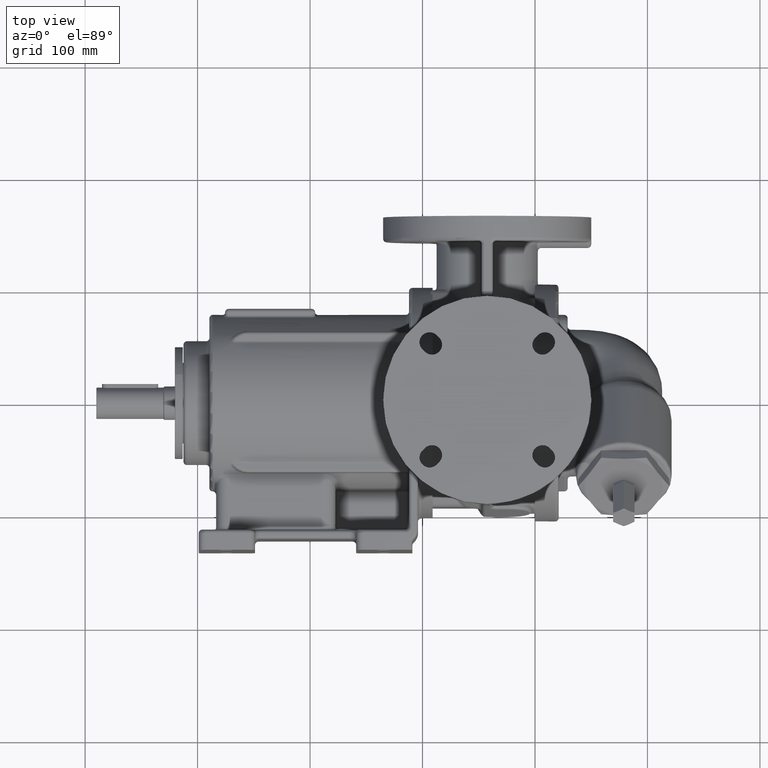
[diagram: clean part render]
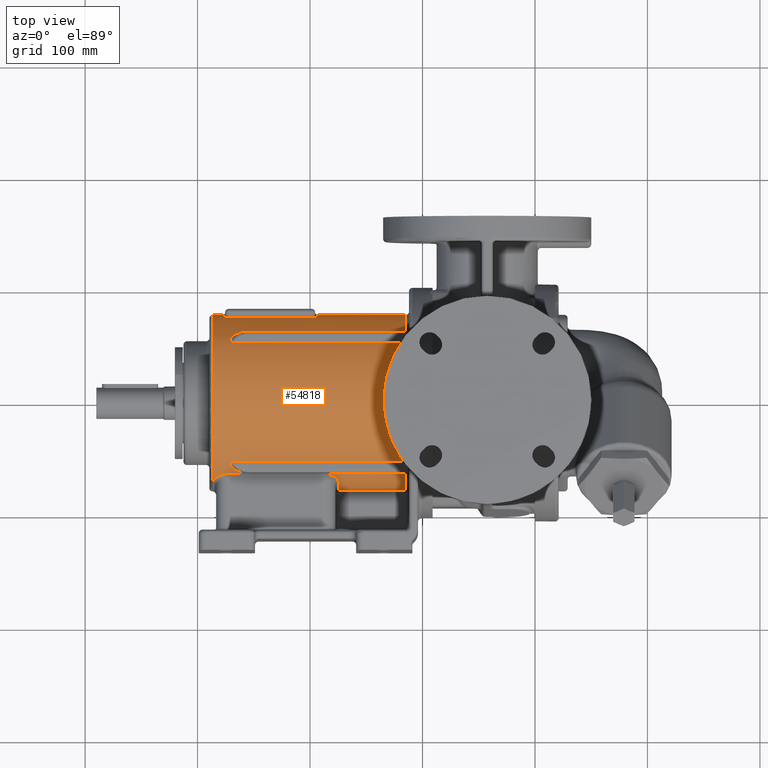
[diagram: same view with one face highlighted and labeled with its STEP entity id]
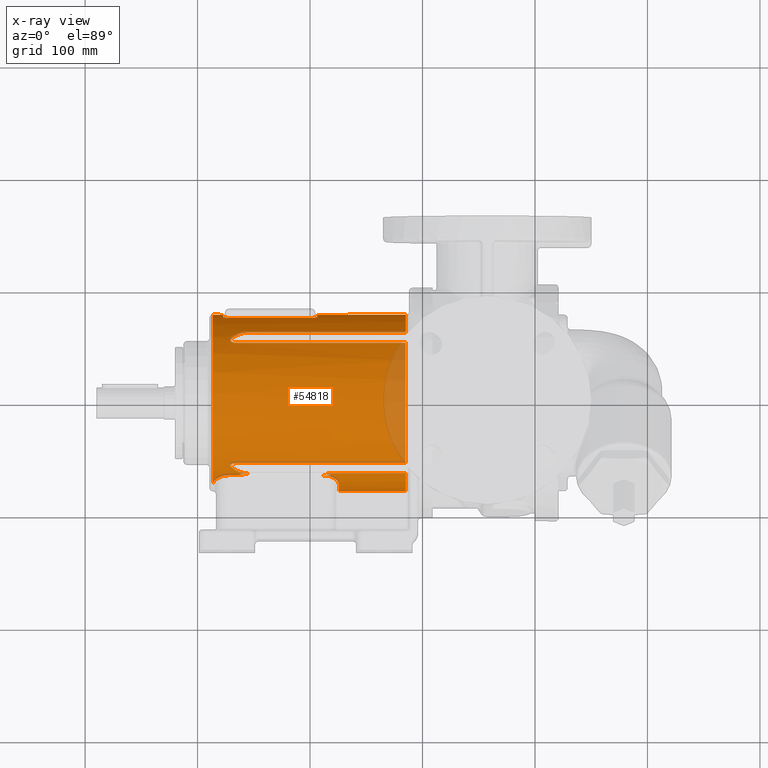
[diagram: x-ray of the same camera — body ghosted, the highlighted face saturated]
A machine part, top view. The second image highlights one B-rep face of the part: STEP entity #54818.
The next image is the same camera in x-ray: the body ghosted, the highlighted face saturated — about 9% of this face is hidden behind the body in this view.
In plain terms, the highlighted cylindrical surface (partial cylindrical patch) has radius 78.5 mm, axis along (1, 0, 0).
Its self-contained STEP definition (entity closure, byte-faithful):
#14180=CARTESIAN_POINT('',(-1.5E1,0.E0,0.E0));
#14181=DIRECTION('',(-1.E0,0.E0,0.E0));
#14182=DIRECTION('',(0.E0,-9.951706942797E-1,9.815950920245E-2));
#14183=AXIS2_PLACEMENT_3D('',#14180,#14181,#14182);
#14197=CARTESIAN_POINT('',(-1.668060122523E2,5.259759268250E1,
-5.827300613497E1));
#14198=CARTESIAN_POINT('',(-1.669124884728E2,5.259745140026E1,
-5.827308478170E1));
#14199=CARTESIAN_POINT('',(-1.671191517579E2,5.260036927245E1,
-5.827052295053E1));
#14200=CARTESIAN_POINT('',(-1.674101852165E2,5.261546896087E1,
-5.825686181501E1));
#14201=CARTESIAN_POINT('',(-1.676825456342E2,5.263959549973E1,
-5.823507233604E1));
#14202=CARTESIAN_POINT('',(-1.679369506952E2,5.267145621044E1,
-5.820625743691E1));
#14203=CARTESIAN_POINT('',(-1.681734399507E2,5.271007946990E1,
-5.817128662438E1));
#14204=CARTESIAN_POINT('',(-1.683924445313E2,5.275468049040E1,
-5.813084422051E1));
#14205=CARTESIAN_POINT('',(-1.685975060358E2,5.280510633246E1,
-5.808504524352E1));
#14206=CARTESIAN_POINT('',(-1.687924707743E2,5.286183997677E1,
-5.803342209129E1));
#14207=CARTESIAN_POINT('',(-1.689794701536E2,5.292535906179E1,
-5.797550404772E1));
#14208=CARTESIAN_POINT('',(-1.691574351655E2,5.299449957422E1,
-5.791231437715E1));
#14209=CARTESIAN_POINT('',(-1.693257756245E2,5.306846534077E1,
-5.784454639646E1));
#14210=CARTESIAN_POINT('',(-1.694844184894E2,5.314686407924E1,
-5.777252670172E1));
#14211=CARTESIAN_POINT('',(-1.696342381301E2,5.323007255173E1,
-5.769587444394E1));
#14212=CARTESIAN_POINT('',(-1.697755475006E2,5.331878529299E1,
-5.761390720225E1));
#14213=CARTESIAN_POINT('',(-1.699094737893E2,5.341281534243E1,
-5.752674986470E1));
#14214=CARTESIAN_POINT('',(-1.700366730125E2,5.351213763082E1,
-5.743437658177E1));
#14215=CARTESIAN_POINT('',(-1.701575475665E2,5.361709143348E1,
-5.733641742677E1));
#14216=CARTESIAN_POINT('',(-1.702716518613E2,5.372771226581E1,
-5.723277904738E1));
#14217=CARTESIAN_POINT('',(-1.703776505604E2,5.384377240091E1,
-5.712361176089E1));
#14218=CARTESIAN_POINT('',(-1.704750905897E2,5.396474377725E1,
-5.700935052415E1));
#14219=CARTESIAN_POINT('',(-1.705643257766E2,5.409069263950E1,
-5.688987141576E1));
#14220=CARTESIAN_POINT('',(-1.706458154223E2,5.422236415600E1,
-5.676439742962E1));
#14221=CARTESIAN_POINT('',(-1.707196309692E2,5.436055535970E1,
-5.663208304787E1));
#14222=CARTESIAN_POINT('',(-1.707850443664E2,5.450512405203E1,
-5.649296829583E1));
#14223=CARTESIAN_POINT('',(-1.708410570191E2,5.465552740098E1,
-5.634747984245E1));
#14224=CARTESIAN_POINT('',(-1.708868665289E2,5.481124984419E1,
-5.619602477885E1));
#14225=CARTESIAN_POINT('',(-1.709220551375E2,5.497241346231E1,
-5.603839179557E1));
#14226=CARTESIAN_POINT('',(-1.709462574366E2,5.513954727374E1,
-5.587396001847E1));
#14227=CARTESIAN_POINT('',(-1.709590701873E2,5.531303156499E1,
-5.570223655364E1));
#14228=CARTESIAN_POINT('',(-1.709597952121E2,5.549233908335E1,
-5.552361998873E1));
#14229=CARTESIAN_POINT('',(-1.709473044787E2,5.567683863102E1,
-5.533862155835E1));
#14230=CARTESIAN_POINT('',(-1.709208740556E2,5.586578198217E1,
-5.514788375321E1));
#14231=CARTESIAN_POINT('',(-1.708798286437E2,5.605927926475E1,
-5.495119013591E1));
#14232=CARTESIAN_POINT('',(-1.708236500992E2,5.625750970728E1,
-5.474824351900E1));
#14233=CARTESIAN_POINT('',(-1.707515268897E2,5.646019774495E1,
-5.453920577348E1));
#14234=CARTESIAN_POINT('',(-1.706626026011E2,5.666619294379E1,
-5.432515487496E1));
#14235=CARTESIAN_POINT('',(-1.705565744611E2,5.687428763717E1,
-5.410726419440E1));
#14236=CARTESIAN_POINT('',(-1.704329872248E2,5.708415227250E1,
-5.388581458286E1));
#14237=CARTESIAN_POINT('',(-1.702911374212E2,5.729612912363E1,
-5.366037621227E1));
#14238=CARTESIAN_POINT('',(-1.701297601856E2,5.751014393464E1,
-5.343095105887E1));
#14239=CARTESIAN_POINT('',(-1.699483368156E2,5.772518055851E1,
-5.319856274022E1));
#14240=CARTESIAN_POINT('',(-1.697466728507E2,5.794019343651E1,
-5.296430831912E1));
#14241=CARTESIAN_POINT('',(-1.695248087487E2,5.815450825360E1,
-5.272889334444E1));
#14242=CARTESIAN_POINT('',(-1.693637635080E2,5.829567491138E1,
-5.257258326948E1));
#14243=CARTESIAN_POINT('',(-1.692799125505E2,5.836591709098E1,
-5.249447325318E1));
#14245=CARTESIAN_POINT('',(-1.554999999999E2,6.332975460123E1,
-4.638525824169E1));
#14246=CARTESIAN_POINT('',(-1.556654730622E2,6.332975405035E1,
-4.638525888579E1));
#14247=CARTESIAN_POINT('',(-1.559974500562E2,6.332595628489E1,
-4.639044479961E1));
#14248=CARTESIAN_POINT('',(-1.564984647084E2,6.330878252961E1,
-4.641388299563E1));
#14249=CARTESIAN_POINT('',(-1.570026589121E2,6.327988842038E1,
-4.645327608035E1));
#14250=CARTESIAN_POINT('',(-1.575100034597E2,6.323888248410E1,
-4.650909403634E1));
#14251=CARTESIAN_POINT('',(-1.580206510595E2,6.318555291975E1,
-4.658153323706E1));
#14252=CARTESIAN_POINT('',(-1.585345282902E2,6.311956870443E1,
-4.667092216673E1));
#14253=CARTESIAN_POINT('',(-1.590523039673E2,6.304040740255E1,
-4.677781458684E1));
#14254=CARTESIAN_POINT('',(-1.595749661799E2,6.294751726881E1,
-4.690276512444E1));
#14255=CARTESIAN_POINT('',(-1.601030913092E2,6.284018056833E1,
-4.704650791893E1));
#14256=CARTESIAN_POINT('',(-1.606369602020E2,6.271766517499E1,
-4.720974583199E1));
#14257=CARTESIAN_POINT('',(-1.611768343887E2,6.257920850715E1,
-4.739316739157E1));
#14258=CARTESIAN_POINT('',(-1.617230954717E2,6.242387523880E1,
-4.759762796111E1));
#14259=CARTESIAN_POINT('',(-1.622761505916E2,6.225060454557E1,
-4.782407480312E1));
#14260=CARTESIAN_POINT('',(-1.628360161639E2,6.205837138824E1,
-4.807332732118E1));
#14261=CARTESIAN_POINT('',(-1.634025733762E2,6.184604002477E1,
-4.834626041932E1));
#14262=CARTESIAN_POINT('',(-1.639756332440E2,6.161245838507E1,
-4.864367251589E1));
#14263=CARTESIAN_POINT('',(-1.645549113820E2,6.135636285874E1,
-4.896639783300E1));
#14264=CARTESIAN_POINT('',(-1.651398017051E2,6.107651136072E1,
-4.931512744519E1));
#14265=CARTESIAN_POINT('',(-1.657296252974E2,6.077168837590E1,
-4.969039974105E1));
#14266=CARTESIAN_POINT('',(-1.663230476289E2,6.044076271459E1,
-5.009252598470E1));
#14267=CARTESIAN_POINT('',(-1.669185312040E2,6.008295955745E1,
-5.052127308480E1));
#14268=CARTESIAN_POINT('',(-1.675141994296E2,5.969745375781E1,
-5.097636839406E1));
#14269=CARTESIAN_POINT('',(-1.681078314093E2,5.928393189715E1,
-5.145684819039E1));
#14270=CARTESIAN_POINT('',(-1.686977509209E2,5.884173118445E1,
-5.196209932149E1));
#14271=CARTESIAN_POINT('',(-1.690861417544E2,5.852826837185E1,
-5.231394171693E1));
#14272=CARTESIAN_POINT('',(-1.692795657484E2,5.836627183732E1,
-5.249405879632E1));
#14274=DIRECTION('',(-1.E0,0.E0,0.E0));
#14275=VECTOR('',#14274,1.404999999999E2);
#14276=CARTESIAN_POINT('',(-1.5E1,6.332975460123E1,-4.638525824169E1));
#14277=LINE('',#14276,#14275);
#14278=CARTESIAN_POINT('',(-1.5E1,0.E0,0.E0));
#14279=DIRECTION('',(1.E0,0.E0,0.E0));
#14280=DIRECTION('',(0.E0,8.067484662577E-1,-5.908950094483E-1));
#14281=AXIS2_PLACEMENT_3D('',#14278,#14279,#14280);
#14283=DIRECTION('',(-1.E0,-9.670967072791E-13,1.324795552156E-12));
#14284=VECTOR('',#14283,1.404999999862E2);
#14285=CARTESIAN_POINT('',(-1.5E1,6.332975460123E1,4.638525824169E1));
#14286=LINE('',#14285,#14284);
#14287=CARTESIAN_POINT('',(-1.555E2,6.332975460123E1,4.638525824169E1));
#14288=CARTESIAN_POINT('',(-1.556670971500E2,6.332975530650E1,
4.638525345007E1));
#14289=CARTESIAN_POINT('',(-1.560022368684E2,6.332579006522E1,
4.639067351990E1));
#14290=CARTESIAN_POINT('',(-1.565079191187E2,6.330801971357E1,
4.641492333365E1));
#14291=CARTESIAN_POINT('',(-1.570161648028E2,6.327843040390E1,
4.645526274082E1));
#14292=CARTESIAN_POINT('',(-1.575266495940E2,6.323691075245E1,
4.651177528962E1));
#14293=CARTESIAN_POINT('',(-1.580390621819E2,6.318323100314E1,
4.658468295514E1));
#14294=CARTESIAN_POINT('',(-1.585525840470E2,6.311707840411E1,
4.667429011521E1));
#14295=CARTESIAN_POINT('',(-1.590683091770E2,6.303783157338E1,
4.678128582203E1));
#14296=CARTESIAN_POINT('',(-1.595891175127E2,6.294479275853E1,
4.690642202185E1));
#14297=CARTESIAN_POINT('',(-1.601176909516E2,6.283688794819E1,
4.705090739461E1));
#14298=CARTESIAN_POINT('',(-1.606541126482E2,6.271332991926E1,
4.721550766953E1));
#14299=CARTESIAN_POINT('',(-1.611968701685E2,6.257366681447E1,
4.740048693857E1));
#14300=CARTESIAN_POINT('',(-1.617445249190E2,6.241750023104E1,
4.760598927758E1));
#14301=CARTESIAN_POINT('',(-1.622973599803E2,6.224388023063E1,
4.783282684745E1));
#14302=CARTESIAN_POINT('',(-1.628560108724E2,6.205155098959E1,
4.808213043958E1));
#14303=CARTESIAN_POINT('',(-1.634208631202E2,6.183923995774E1,
4.835495791149E1));
#14304=CARTESIAN_POINT('',(-1.639926852706E2,6.160542233984E1,
4.865258535574E1));
#14305=CARTESIAN_POINT('',(-1.645723107913E2,6.134835133435E1,
4.897644084040E1));
#14306=CARTESIAN_POINT('',(-1.651589408842E2,6.106700890808E1,
4.932690089337E1));
#14307=CARTESIAN_POINT('',(-1.657498214484E2,6.076102041046E1,
4.970344749013E1));
#14308=CARTESIAN_POINT('',(-1.663425541022E2,6.042976507089E1,
5.010579208137E1));
#14309=CARTESIAN_POINT('',(-1.669356658409E2,6.007240376808E1,
5.053381724861E1));
#14310=CARTESIAN_POINT('',(-1.675277028211E2,5.968832263482E1,
5.098705071180E1));
#14311=CARTESIAN_POINT('',(-1.681175010264E2,5.927674063189E1,
5.146510947168E1));
#14312=CARTESIAN_POINT('',(-1.687029920857E2,5.883810574173E1,
5.196619515600E1));
#14313=CARTESIAN_POINT('',(-1.690901337834E2,5.852414300229E1,
5.231855244057E1));
#14314=CARTESIAN_POINT('',(-1.692834580644E2,5.836220167981E1,
5.249860393463E1));
#14316=CARTESIAN_POINT('',(-1.692834580644E2,5.836220167981E1,
5.249860393463E1));
#14317=CARTESIAN_POINT('',(-1.693666197698E2,5.829254367452E1,
5.257605087009E1));
#14318=CARTESIAN_POINT('',(-1.695270065624E2,5.815275009731E1,
5.273083051413E1));
#14319=CARTESIAN_POINT('',(-1.697479650776E2,5.793880176727E1,
5.296582789664E1));
#14320=CARTESIAN_POINT('',(-1.699479051188E2,5.772547938074E1,
5.319823319243E1));
#14321=CARTESIAN_POINT('',(-1.701281575946E2,5.751187537094E1,
5.342908398234E1));
#14322=CARTESIAN_POINT('',(-1.702894343374E2,5.729860832715E1,
5.365772901506E1));
#14323=CARTESIAN_POINT('',(-1.704321728916E2,5.708578175035E1,
5.388409224340E1));
#14324=CARTESIAN_POINT('',(-1.705563273670E2,5.687458653715E1,
5.410695251319E1));
#14325=CARTESIAN_POINT('',(-1.706622066062E2,5.666636572836E1,
5.432497268748E1));
#14326=CARTESIAN_POINT('',(-1.707508380138E2,5.646173942288E1,
5.453760532110E1));
#14327=CARTESIAN_POINT('',(-1.708229140164E2,5.626055571554E1,
5.474511091061E1));
#14328=CARTESIAN_POINT('',(-1.708791509108E2,5.606263448285E1,
5.494776774582E1));
#14329=CARTESIAN_POINT('',(-1.709201333690E2,5.586855574752E1,
5.514507549458E1));
#14330=CARTESIAN_POINT('',(-1.709467795988E2,5.567903886564E1,
5.533640833585E1));
#14331=CARTESIAN_POINT('',(-1.709597674695E2,5.549465870303E1,
5.552130088223E1));
#14332=CARTESIAN_POINT('',(-1.709595046062E2,5.531567701598E1,
5.569960890597E1));
#14333=CARTESIAN_POINT('',(-1.709466874490E2,5.514225922653E1,
5.587128411743E1));
#14334=CARTESIAN_POINT('',(-1.709221137480E2,5.497454903237E1,
5.603629829139E1));
#14335=CARTESIAN_POINT('',(-1.708867831649E2,5.481268140459E1,
5.619462926943E1));
#14336=CARTESIAN_POINT('',(-1.708412999499E2,5.465697418413E1,
5.634607560336E1));
#14337=CARTESIAN_POINT('',(-1.707861020430E2,5.450738095972E1,
5.649078911686E1));
#14338=CARTESIAN_POINT('',(-1.707215150902E2,5.436354826683E1,
5.662920956986E1));
#14339=CARTESIAN_POINT('',(-1.706476865874E2,5.422498644614E1,
5.676189414245E1));
#14340=CARTESIAN_POINT('',(-1.705649700205E2,5.409172412210E1,
5.688889329280E1));
#14341=CARTESIAN_POINT('',(-1.704742987798E2,5.396426193711E1,
5.700980793119E1));
#14342=CARTESIAN_POINT('',(-1.703765556324E2,5.384308769468E1,
5.712425646706E1));
#14343=CARTESIAN_POINT('',(-1.702719158807E2,5.372799030832E1,
5.723251654255E1));
#14344=CARTESIAN_POINT('',(-1.701600833693E2,5.361856213093E1,
5.733504075781E1));
#14345=CARTESIAN_POINT('',(-1.700403749494E2,5.351457863708E1,
5.743210143597E1));
#14346=CARTESIAN_POINT('',(-1.699131301169E2,5.341559127918E1,
5.752417228400E1));
#14347=CARTESIAN_POINT('',(-1.697785226882E2,5.332135426257E1,
5.761153012184E1));
#14348=CARTESIAN_POINT('',(-1.696362743351E2,5.323182662169E1,
5.769425721913E1));
#14349=CARTESIAN_POINT('',(-1.694861171784E2,5.314732212712E1,
5.777210618817E1));
#14350=CARTESIAN_POINT('',(-1.693275736886E2,5.306861251752E1,
5.784441102695E1));
#14351=CARTESIAN_POINT('',(-1.691610783407E2,5.299560322136E1,
5.791130345618E1));
#14352=CARTESIAN_POINT('',(-1.689858399460E2,5.292775003134E1,
5.797332047245E1));
#14353=CARTESIAN_POINT('',(-1.688005674426E2,5.286481812204E1,
5.803070939323E1));
#14354=CARTESIAN_POINT('',(-1.686038610695E2,5.280700498326E1,
5.808331997791E1));
#14355=CARTESIAN_POINT('',(-1.683950441444E2,5.275519438409E1,
5.813037842499E1));
#14356=CARTESIAN_POINT('',(-1.681734799929E2,5.270989474482E1,
5.817145403682E1));
#14357=CARTESIAN_POINT('',(-1.679386816863E2,5.267155080768E1,
5.820617175304E1));
#14358=CARTESIAN_POINT('',(-1.676877280886E2,5.264026564957E1,
5.823446595250E1));
#14359=CARTESIAN_POINT('',(-1.674179941624E2,5.261631998098E1,
5.825609505848E1));
#14360=CARTESIAN_POINT('',(-1.671267420674E2,5.260073175155E1,
5.827018902747E1));
#14361=CARTESIAN_POINT('',(-1.669156046180E2,5.259749167020E1,
5.827306304234E1));
#14362=CARTESIAN_POINT('',(-1.668060122523E2,5.259759268250E1,
5.827300613497E1));
#14364=CARTESIAN_POINT('',(-1.668060122523E2,-5.259759268250E1,
5.827300613497E1));
#14365=CARTESIAN_POINT('',(-1.669141635160E2,-5.259747328108E1,
5.827307282646E1));
#14366=CARTESIAN_POINT('',(-1.671232798339E2,-5.260058258115E1,
5.827032681358E1));
#14367=CARTESIAN_POINT('',(-1.674147099210E2,-5.261594158355E1,
5.825643595986E1));
#14368=CARTESIAN_POINT('',(-1.676859541318E2,-5.264004721349E1,
5.823466371079E1));
#14369=CARTESIAN_POINT('',(-1.679387688299E2,-5.267163932439E1,
5.820609170273E1));
#14370=CARTESIAN_POINT('',(-1.681744133705E2,-5.271013986784E1,
5.817123191614E1));
#14371=CARTESIAN_POINT('',(-1.683944884806E2,-5.275507633570E1,
5.813048524372E1));
#14372=CARTESIAN_POINT('',(-1.686010812292E2,-5.280613495460E1,
5.808411051099E1));
#14373=CARTESIAN_POINT('',(-1.687966237168E2,-5.286340963487E1,
5.803199237905E1));
#14374=CARTESIAN_POINT('',(-1.689826372048E2,-5.292662844502E1,
5.797434478704E1));
#14375=CARTESIAN_POINT('',(-1.691591944629E2,-5.299505932043E1,
5.791180162552E1));
#14376=CARTESIAN_POINT('',(-1.693265882230E2,-5.306847020266E1,
5.784454164742E1));
#14377=CARTESIAN_POINT('',(-1.694851089408E2,-5.314684315881E1,
5.777254625721E1));
#14378=CARTESIAN_POINT('',(-1.696349143015E2,-5.323066483670E1,
5.769532860330E1));
#14379=CARTESIAN_POINT('',(-1.697765891529E2,-5.331988096008E1,
5.761289355278E1));
#14380=CARTESIAN_POINT('',(-1.699110065744E2,-5.341414585332E1,
5.752551462052E1));
#14381=CARTESIAN_POINT('',(-1.700384820711E2,-5.351346760112E1,
5.743313720071E1));
#14382=CARTESIAN_POINT('',(-1.701591339584E2,-5.361805314106E1,
5.733551753539E1));
#14383=CARTESIAN_POINT('',(-1.702723409463E2,-5.372819799488E1,
5.723232251587E1));
#14384=CARTESIAN_POINT('',(-1.703776380312E2,-5.384397409755E1,
5.712342157343E1));
#14385=CARTESIAN_POINT('',(-1.704752082496E2,-5.396521300321E1,
5.700890715848E1));
#14386=CARTESIAN_POINT('',(-1.705650657248E2,-5.409198299698E1,
5.688864589930E1));
#14387=CARTESIAN_POINT('',(-1.706471512228E2,-5.422450709318E1,
5.676235132710E1));
#14388=CARTESIAN_POINT('',(-1.707210856086E2,-5.436298585026E1,
5.662974997146E1));
#14389=CARTESIAN_POINT('',(-1.707861659879E2,-5.450742887406E1,
5.649074422794E1));
#14390=CARTESIAN_POINT('',(-1.708417635086E2,-5.465779037977E1,
5.634528494432E1));
#14391=CARTESIAN_POINT('',(-1.708872950048E2,-5.481383826626E1,
5.619350099653E1));
#14392=CARTESIAN_POINT('',(-1.709223503466E2,-5.497564162449E1,
5.603522617448E1));
#14393=CARTESIAN_POINT('',(-1.709466131968E2,-5.514337913638E1,
5.587017929070E1));
#14394=CARTESIAN_POINT('',(-1.709594739337E2,-5.531725486603E1,
5.569804313204E1));
#14395=CARTESIAN_POINT('',(-1.709597840698E2,-5.549679180144E1,
5.551916970309E1));
#14396=CARTESIAN_POINT('',(-1.709467579746E2,-5.568123268275E1,
5.533419977294E1));
#14397=CARTESIAN_POINT('',(-1.709199080866E2,-5.586974429937E1,
5.514386823849E1));
#14398=CARTESIAN_POINT('',(-1.708789652474E2,-5.606255263339E1,
5.494784871204E1));
#14399=CARTESIAN_POINT('',(-1.708230410622E2,-5.625996881381E1,
5.474571447711E1));
#14400=CARTESIAN_POINT('',(-1.707509059798E2,-5.646190273074E1,
5.453743900934E1));
#14401=CARTESIAN_POINT('',(-1.706618547936E2,-5.666749957605E1,
5.432379181062E1));
#14402=CARTESIAN_POINT('',(-1.705554709843E2,-5.687596053338E1,
5.410550761602E1));
#14403=CARTESIAN_POINT('',(-1.704315637259E2,-5.708661431304E1,
5.388320823745E1));
#14404=CARTESIAN_POINT('',(-1.702893591407E2,-5.729881107809E1,
5.365751121354E1));
#14405=CARTESIAN_POINT('',(-1.701283738864E2,-5.751181995694E1,
5.342914325724E1));
#14406=CARTESIAN_POINT('',(-1.699479894415E2,-5.772536378309E1,
5.319835867619E1));
#14407=CARTESIAN_POINT('',(-1.697479875852E2,-5.793870906258E1,
5.296592915259E1));
#14408=CARTESIAN_POINT('',(-1.695271062032E2,-5.815281566086E1,
5.273076037737E1));
#14409=CARTESIAN_POINT('',(-1.693668748512E2,-5.829223089107E1,
5.257639140408E1));
#14410=CARTESIAN_POINT('',(-1.692839296065E2,-5.836169464748E1,
5.249916759220E1));
#14412=CARTESIAN_POINT('',(-1.555E2,-6.332975460123E1,4.638525824169E1));
#14413=CARTESIAN_POINT('',(-1.556671375429E2,-6.332975533254E1,
4.638525340295E1));
#14414=CARTESIAN_POINT('',(-1.560023270944E2,-6.332578825543E1,
4.639067599643E1));
#14415=CARTESIAN_POINT('',(-1.565079716981E2,-6.330801732215E1,
4.641492659314E1));
#14416=CARTESIAN_POINT('',(-1.570161259560E2,-6.327843340752E1,
4.645525864421E1));
#14417=CARTESIAN_POINT('',(-1.575265042525E2,-6.323692477409E1,
4.651175621214E1));
#14418=CARTESIAN_POINT('',(-1.580388343679E2,-6.318325853269E1,
4.658464560510E1));
#14419=CARTESIAN_POINT('',(-1.585523509676E2,-6.311711159297E1,
4.667424522618E1));
#14420=CARTESIAN_POINT('',(-1.590680611013E2,-6.303787233532E1,
4.678123088095E1));
#14421=CARTESIAN_POINT('',(-1.595888320326E2,-6.294484680330E1,
4.690634945458E1));
#14422=CARTESIAN_POINT('',(-1.601173256738E2,-6.283696771051E1,
4.705080082319E1));
#14423=CARTESIAN_POINT('',(-1.606537470953E2,-6.271342119396E1,
4.721538642290E1));
#14424=CARTESIAN_POINT('',(-1.611965243595E2,-6.257376317930E1,
4.740035970180E1));
#14425=CARTESIAN_POINT('',(-1.617441375157E2,-6.241761737909E1,
4.760583557334E1));
#14426=CARTESIAN_POINT('',(-1.622968656859E2,-6.224404057677E1,
4.783261804944E1));
#14427=CARTESIAN_POINT('',(-1.628554814958E2,-6.205173624005E1,
4.808189136369E1));
#14428=CARTESIAN_POINT('',(-1.634204304840E2,-6.183940198908E1,
4.835475086782E1));
#14429=CARTESIAN_POINT('',(-1.639923822227E2,-6.160554261802E1,
4.865243318681E1));
#14430=CARTESIAN_POINT('',(-1.645720749256E2,-6.134845518619E1,
4.897631083226E1));
#14431=CARTESIAN_POINT('',(-1.651587953817E2,-6.106708836485E1,
4.932680268070E1));
#14432=CARTESIAN_POINT('',(-1.657496876392E2,-6.076109155602E1,
4.970336032292E1));
#14433=CARTESIAN_POINT('',(-1.663422558545E2,-6.042992440985E1,
5.010559924707E1));
#14434=CARTESIAN_POINT('',(-1.669351444340E2,-6.007270475024E1,
5.053345845938E1));
#14435=CARTESIAN_POINT('',(-1.675270321363E2,-5.968876530697E1,
5.098653220500E1));
#14436=CARTESIAN_POINT('',(-1.681168696829E2,-5.927719648961E1,
5.146458386297E1));
#14437=CARTESIAN_POINT('',(-1.687025819915E2,-5.883848583163E1,
5.196576868507E1));
#14438=CARTESIAN_POINT('',(-1.690902151025E2,-5.852396505639E1,
5.231875137434E1));
#14439=CARTESIAN_POINT('',(-1.692839296065E2,-5.836169464748E1,
5.249916759220E1));
#14441=DIRECTION('',(-1.E0,8.639795088102E-13,1.183445591528E-12));
#14442=VECTOR('',#14441,1.404999999878E2);
#14443=CARTESIAN_POINT('',(-1.5E1,-6.332975460123E1,4.638525824169E1));
#14444=LINE('',#14443,#14442);
#14445=CARTESIAN_POINT('',(-1.499999999999E1,-7.812089899906E1,
7.705521422877E0));
#14446=CARTESIAN_POINT('',(-1.499999598365E1,-7.812192983945E1,
7.695071042227E0));
#14447=CARTESIAN_POINT('',(-1.500042103517E1,-7.812398305336E1,
7.674218575636E0));
#14448=CARTESIAN_POINT('',(-1.500194911942E1,-7.812703595738E1,
7.643073602118E0));
#14449=CARTESIAN_POINT('',(-1.500367420730E1,-7.812905219882E1,
7.622420640681E0));
#14450=CARTESIAN_POINT('',(-1.500471090074E1,-7.813005571550E1,
7.612121205362E0));
#14452=DIRECTION('',(-1.E0,2.500644752989E-9,-1.809469899180E-10));
#14453=VECTOR('',#14452,5.949057643472E1);
#14454=CARTESIAN_POINT('',(-1.500471090074E1,-7.813005571550E1,
7.612121205362E0));
#14455=LINE('',#14454,#14453);
#14456=CARTESIAN_POINT('',(-7.450000000001E1,-7.812089897762E1,
7.705521420774E0));
#14457=CARTESIAN_POINT('',(-7.449999958429E1,-7.812192717882E1,
7.695097149078E0));
#14458=CARTESIAN_POINT('',(-7.449957060489E1,-7.812397708561E1,
7.674279456282E0));
#14459=CARTESIAN_POINT('',(-7.449802490357E1,-7.812702995553E1,
7.643135716633E0));
#14460=CARTESIAN_POINT('',(-7.449632580981E1,-7.812904951741E1,
7.622446346615E0));
#14461=CARTESIAN_POINT('',(-7.449528733546E1,-7.813005556674E1,
7.612121194597E0));
#14463=CARTESIAN_POINT('',(-7.45E1,0.E0,0.E0));
#14464=DIRECTION('',(-1.E0,0.E0,0.E0));
#14465=DIRECTION('',(0.E0,-9.951706942797E-1,9.815950920245E-2));
#14466=AXIS2_PLACEMENT_3D('',#14463,#14464,#14465);
#14468=CARTESIAN_POINT('',(-7.45E1,-7.134274986140E1,3.274846625743E1));
#14469=CARTESIAN_POINT('',(-7.450000924274E1,-7.126133540472E1,
3.292582683804E1));
#14470=CARTESIAN_POINT('',(-7.450730698588E1,-7.109656497578E1,
3.328129625685E1));
#14471=CARTESIAN_POINT('',(-7.454043130452E1,-7.084321430530E1,
3.381725705764E1));
#14472=CARTESIAN_POINT('',(-7.459597758652E1,-7.058443503522E1,
3.435413197426E1));
#14473=CARTESIAN_POINT('',(-7.467409656897E1,-7.032075736585E1,
3.489069222424E1));
#14474=CARTESIAN_POINT('',(-7.477485175978E1,-7.005282966872E1,
3.542555867714E1));
#14475=CARTESIAN_POINT('',(-7.489819882285E1,-6.978136306110E1,
3.595733279508E1));
#14476=CARTESIAN_POINT('',(-7.504407838581E1,-6.950696741777E1,
3.648491173866E1));
#14477=CARTESIAN_POINT('',(-7.521250376558E1,-6.923002610345E1,
3.700769491444E1));
#14478=CARTESIAN_POINT('',(-7.540350709529E1,-6.895093601643E1,
3.752509448810E1));
#14479=CARTESIAN_POINT('',(-7.561682673630E1,-6.867049069031E1,
3.803584676392E1));
#14480=CARTESIAN_POINT('',(-7.585191639142E1,-6.838968580873E1,
3.853841973384E1));
#14481=CARTESIAN_POINT('',(-7.610811243764E1,-6.810948896817E1,
3.903143462700E1));
#14482=CARTESIAN_POINT('',(-7.638486254828E1,-6.783080298974E1,
3.951371346885E1));
#14483=CARTESIAN_POINT('',(-7.668152265718E1,-6.755451671914E1,
3.998417501542E1));
#14484=CARTESIAN_POINT('',(-7.699727127325E1,-6.728158366002E1,
4.044169439331E1));
#14485=CARTESIAN_POINT('',(-7.733104475482E1,-6.701303881260E1,
4.088507737791E1));
#14486=CARTESIAN_POINT('',(-7.768162315572E1,-6.674986955314E1,
4.131327082517E1));
#14487=CARTESIAN_POINT('',(-7.804797123197E1,-6.649297170389E1,
4.172541772272E1));
#14488=CARTESIAN_POINT('',(-7.842904139271E1,-6.624317863536E1,
4.212079412128E1));
#14489=CARTESIAN_POINT('',(-7.882370517271E1,-6.600127119235E1,
4.249878151599E1));
#14490=CARTESIAN_POINT('',(-7.923079503821E1,-6.576795691402E1,
4.285888885366E1));
#14491=CARTESIAN_POINT('',(-7.964909558333E1,-6.554384495114E1,
4.320077865319E1));
#14492=CARTESIAN_POINT('',(-8.007728684909E1,-6.532961327866E1,
4.352400464447E1));
#14493=CARTESIAN_POINT('',(-8.051392467400E1,-6.512595219980E1,
4.382809942513E1));
#14494=CARTESIAN_POINT('',(-8.095759938609E1,-6.493340574329E1,
4.411280620030E1));
#14495=CARTESIAN_POINT('',(-8.140780170230E1,-6.475206245952E1,
4.437851491950E1));
#14496=CARTESIAN_POINT('',(-8.186421891618E1,-6.458194747411E1,
4.462566437970E1));
#14497=CARTESIAN_POINT('',(-8.232599886365E1,-6.442327755772E1,
4.485437676485E1));
#14498=CARTESIAN_POINT('',(-8.279152979320E1,-6.427647608006E1,
4.506444965034E1));
#14499=CARTESIAN_POINT('',(-8.325933027469E1,-6.414182876630E1,
4.525585445357E1));
#14500=CARTESIAN_POINT('',(-8.372938087676E1,-6.401916697133E1,
4.542917338137E1));
#14501=CARTESIAN_POINT('',(-8.420204613295E1,-6.390833116843E1,
4.558493247032E1));
#14502=CARTESIAN_POINT('',(-8.467716578102E1,-6.380927021239E1,
4.572346809929E1));
#14503=CARTESIAN_POINT('',(-8.515351607968E1,-6.372204835586E1,
4.584492321100E1));
#14504=CARTESIAN_POINT('',(-8.563010925279E1,-6.364669379171E1,
4.594946180556E1));
#14505=CARTESIAN_POINT('',(-8.610697455705E1,-6.358308499904E1,
4.603742509344E1));
#14506=CARTESIAN_POINT('',(-8.658435194678E1,-6.353121501499E1,
4.610896597474E1));
#14507=CARTESIAN_POINT('',(-8.706233336284E1,-6.349097623390E1,
4.616434836945E1));
#14508=CARTESIAN_POINT('',(-8.754087579265E1,-6.346218486928E1,
4.620391314793E1));
#14509=CARTESIAN_POINT('',(-8.802002902743E1,-6.344481497512E1,
4.622775720972E1));
#14510=CARTESIAN_POINT('',(-8.833993480213E1,-6.344090424174E1,
4.623312365351E1));
#14511=CARTESIAN_POINT('',(-8.850000000634E1,-6.344090004243E1,
4.623312883428E1));
#14513=DIRECTION('',(-1.E0,-5.701259571316E-13,-7.788901800101E-13));
#14514=VECTOR('',#14513,8.399999998452E1);
#14515=CARTESIAN_POINT('',(-8.850000000634E1,-6.344090004243E1,
4.623312883428E1));
#14516=LINE('',#14515,#14514);
#14517=CARTESIAN_POINT('',(-1.725E2,-6.344090004237E1,4.623312883436E1));
#14518=CARTESIAN_POINT('',(-1.726596730254E2,-6.344090190779E1,
4.623312406928E1));
#14519=CARTESIAN_POINT('',(-1.729790795853E2,-6.344483454677E1,
4.622773165723E1));
#14520=CARTESIAN_POINT('',(-1.734585241490E2,-6.346230902707E1,
4.620374232772E1));
#14521=CARTESIAN_POINT('',(-1.739378439953E2,-6.349124466814E1,
4.616397938832E1));
#14522=CARTESIAN_POINT('',(-1.744167253818E2,-6.353160297232E1,
4.610843145448E1));
#14523=CARTESIAN_POINT('',(-1.748947975347E2,-6.358342159682E1,
4.603696003667E1));
#14524=CARTESIAN_POINT('',(-1.753715391847E2,-6.364682977371E1,
4.594927315564E1));
#14525=CARTESIAN_POINT('',(-1.758467302255E2,-6.372197893066E1,
4.584501926948E1));
#14526=CARTESIAN_POINT('',(-1.763210968933E2,-6.380891097639E1,
4.572396887938E1));
#14527=CARTESIAN_POINT('',(-1.767952450535E2,-6.390782960225E1,
4.558563570010E1));
#14528=CARTESIAN_POINT('',(-1.772690121757E2,-6.401887854105E1,
4.542958070227E1));
#14529=CARTESIAN_POINT('',(-1.777408777127E2,-6.414189505788E1,
4.525576136546E1));
#14530=CARTESIAN_POINT('',(-1.782092925110E2,-6.427664945786E1,
4.506420190223E1));
#14531=CARTESIAN_POINT('',(-1.786735814844E2,-6.442306110983E1,
4.485468576604E1));
#14532=CARTESIAN_POINT('',(-1.791338993939E2,-6.458124340640E1,
4.462668204568E1));
#14533=CARTESIAN_POINT('',(-1.795902292097E2,-6.475133887943E1,
4.437957179694E1));
#14534=CARTESIAN_POINT('',(-1.800416640808E2,-6.493318229250E1,
4.411313787951E1));
#14535=CARTESIAN_POINT('',(-1.804865688006E2,-6.512625052465E1,
4.382765765034E1));
#14536=CARTESIAN_POINT('',(-1.809234000516E2,-6.532993352126E1,
4.352352285951E1));
#14537=CARTESIAN_POINT('',(-1.813510827035E2,-6.554381410711E1,
4.320082309177E1));
#14538=CARTESIAN_POINT('',(-1.817687437828E2,-6.576755065348E1,
4.285951060574E1));
#14539=CARTESIAN_POINT('',(-1.821754868368E2,-6.600072625956E1,
4.249962756314E1));
#14540=CARTESIAN_POINT('',(-1.825701085099E2,-6.624267802119E1,
4.212158210416E1));
#14541=CARTESIAN_POINT('',(-1.829513727703E2,-6.649261870291E1,
4.172598152132E1));
#14542=CARTESIAN_POINT('',(-1.833181433598E2,-6.674970964664E1,
4.131353064025E1));
#14543=CARTESIAN_POINT('',(-1.836690723319E2,-6.701304964765E1,
4.088506072117E1));
#14544=CARTESIAN_POINT('',(-1.840029135830E2,-6.728167999838E1,
4.044153436247E1));
#14545=CARTESIAN_POINT('',(-1.843185751295E2,-6.755460790819E1,
3.998402090283E1));
#14546=CARTESIAN_POINT('',(-1.846152058623E2,-6.783092063693E1,
3.951351208421E1));
#14547=CARTESIAN_POINT('',(-1.848920647015E2,-6.810969149506E1,
3.903108216445E1));
#14548=CARTESIAN_POINT('',(-1.851484373533E2,-6.838995925728E1,
3.853793476383E1));
#14549=CARTESIAN_POINT('',(-1.853834903192E2,-6.867070345118E1,
3.803546097782E1));
#14550=CARTESIAN_POINT('',(-1.855965660305E2,-6.895088082133E1,
3.752519199953E1));
#14551=CARTESIAN_POINT('',(-1.857872915643E2,-6.922962913545E1,
3.700843482196E1));
#14552=CARTESIAN_POINT('',(-1.859556464282E2,-6.950650758241E1,
3.648578851176E1));
#14553=CARTESIAN_POINT('',(-1.861015846076E2,-6.978106605993E1,
3.595791198322E1));
#14554=CARTESIAN_POINT('',(-1.862250397775E2,-7.005278534572E1,
3.542564909291E1));
#14555=CARTESIAN_POINT('',(-1.863258600239E2,-7.032088086653E1,
3.489044505602E1));
#14556=CARTESIAN_POINT('',(-1.864040170724E2,-7.058466660751E1,
3.435365719301E1));
#14557=CARTESIAN_POINT('',(-1.864595726238E2,-7.084346966006E1,
3.381672178956E1));
#14558=CARTESIAN_POINT('',(-1.864926925028E2,-7.109675454767E1,
3.328089013313E1));
#14559=CARTESIAN_POINT('',(-1.864999845030E2,-7.126140328671E1,
3.292567773180E1));
#14560=CARTESIAN_POINT('',(-1.864999974845E2,-7.134274097943E1,
3.274848560684E1));
#14562=CARTESIAN_POINT('',(-1.865E2,0.E0,0.E0));
#14563=DIRECTION('',(-1.E0,0.E0,0.E0));
#14564=DIRECTION('',(0.E0,-9.088247258526E-1,4.171781605967E-1));
#14565=AXIS2_PLACEMENT_3D('',#14562,#14563,#14564);
#14567=CARTESIAN_POINT('',(-1.865E2,0.E0,0.E0));
#14568=DIRECTION('',(-1.E0,0.E0,0.E0));
#14569=DIRECTION('',(0.E0,1.E0,0.E0));
#14570=AXIS2_PLACEMENT_3D('',#14567,#14568,#14569);
#14572=CARTESIAN_POINT('',(-1.865E2,-7.134274986142E1,-3.274846625737E1));
#14573=CARTESIAN_POINT('',(-1.864999906501E2,-7.126133886895E1,
-3.292581924561E1));
#14574=CARTESIAN_POINT('',(-1.864926931883E2,-7.109657419508E1,
-3.328127649563E1));
#14575=CARTESIAN_POINT('',(-1.864595696656E2,-7.084322789667E1,
-3.381722854780E1));
#14576=CARTESIAN_POINT('',(-1.864040238560E2,-7.058444953376E1,
-3.435410220216E1));
#14577=CARTESIAN_POINT('',(-1.863259045690E2,-7.032076958101E1,
-3.489066764610E1));
#14578=CARTESIAN_POINT('',(-1.862251484504E2,-7.005283747409E1,
-3.542554333277E1));
#14579=CARTESIAN_POINT('',(-1.861017993267E2,-6.978136293644E1,
-3.595733310224E1));
#14580=CARTESIAN_POINT('',(-1.859559218896E2,-6.950696692558E1,
-3.648491262949E1));
#14581=CARTESIAN_POINT('',(-1.857875048786E2,-6.923003491936E1,
-3.700767823687E1));
#14582=CARTESIAN_POINT('',(-1.855965180438E2,-6.895096422829E1,
-3.752504248287E1));
#14583=CARTESIAN_POINT('',(-1.853832077991E2,-6.867052725821E1,
-3.803578071062E1));
#14584=CARTESIAN_POINT('',(-1.851481177193E2,-6.838972403864E1,
-3.853835190247E1));
#14585=CARTESIAN_POINT('',(-1.848919199814E2,-6.810952536680E1,
-3.903137113403E1));
#14586=CARTESIAN_POINT('',(-1.846151752217E2,-6.783084003979E1,
-3.951364982868E1));
#14587=CARTESIAN_POINT('',(-1.843185291318E2,-6.755456073327E1,
-3.998410060070E1));
#14588=CARTESIAN_POINT('',(-1.840027905148E2,-6.728163085280E1,
-4.044161588052E1));
#14589=CARTESIAN_POINT('',(-1.836690140799E2,-6.701308340972E1,
-4.088500433887E1));
#14590=CARTESIAN_POINT('',(-1.833184174809E2,-6.674990454078E1,
-4.131321437374E1));
#14591=CARTESIAN_POINT('',(-1.829520632566E2,-6.649299862299E1,
-4.172537487273E1));
#14592=CARTESIAN_POINT('',(-1.825709961625E2,-6.624320190911E1,
-4.212075751420E1));
#14593=CARTESIAN_POINT('',(-1.821763502641E2,-6.600129971411E1,
-4.249873717182E1));
#14594=CARTESIAN_POINT('',(-1.817692814347E2,-6.576799481096E1,
-4.285883063426E1));
#14595=CARTESIAN_POINT('',(-1.813509907779E2,-6.554389217293E1,
-4.320070699658E1));
#14596=CARTESIAN_POINT('',(-1.809227851095E2,-6.532965191686E1,
-4.352394675436E1));
#14597=CARTESIAN_POINT('',(-1.804860993261E2,-6.512596568375E1,
-4.382807950610E1));
#14598=CARTESIAN_POINT('',(-1.800423956388E2,-6.493340357803E1,
-4.411280941076E1));
#14599=CARTESIAN_POINT('',(-1.795922176582E2,-6.475206727545E1,
-4.437850780703E1));
#14600=CARTESIAN_POINT('',(-1.791358748087E2,-6.458197780052E1,
-4.462562041533E1));
#14601=CARTESIAN_POINT('',(-1.786741147430E2,-6.442331439410E1,
-4.485432387981E1));
#14602=CARTESIAN_POINT('',(-1.782085374844E2,-6.427649853072E1,
-4.506441769460E1));
#14603=CARTESIAN_POINT('',(-1.777406677319E2,-6.414183149975E1,
-4.525585061593E1));
#14604=CARTESIAN_POINT('',(-1.772706086532E2,-6.401916649481E1,
-4.542917404211E1));
#14605=CARTESIAN_POINT('',(-1.767980025196E2,-6.390833745305E1,
-4.558492364176E1));
#14606=CARTESIAN_POINT('',(-1.763229176368E2,-6.380928252811E1,
-4.572345090667E1));
#14607=CARTESIAN_POINT('',(-1.758465535653E2,-6.372205957121E1,
-4.584490763060E1));
#14608=CARTESIAN_POINT('',(-1.753699110099E2,-6.364669903315E1,
-4.594945455320E1));
#14609=CARTESIAN_POINT('',(-1.748930108506E2,-6.358308568256E1,
-4.603742415686E1));
#14610=CARTESIAN_POINT('',(-1.744156244316E2,-6.353120861325E1,
-4.610897479967E1));
#14611=CARTESIAN_POINT('',(-1.739376526049E2,-6.349097022775E1,
-4.616435662637E1));
#14612=CARTESIAN_POINT('',(-1.734591250965E2,-6.346218149997E1,
-4.620391777933E1));
#14613=CARTESIAN_POINT('',(-1.729799827866E2,-6.344481425152E1,
-4.622775818440E1));
#14614=CARTESIAN_POINT('',(-1.726600707843E2,-6.344090423921E1,
-4.623312369563E1));
#14615=CARTESIAN_POINT('',(-1.724999999931E2,-6.344090004243E1,
-4.623312883427E1));
#14617=DIRECTION('',(1.E0,-5.779926802858E-13,7.892945557949E-13));
#14618=VECTOR('',#14617,8.399999998354E1);
#14619=CARTESIAN_POINT('',(-1.724999999931E2,-6.344090004243E1,
-4.623312883427E1));
#14620=LINE('',#14619,#14618);
#14621=CARTESIAN_POINT('',(-8.850000000958E1,-6.344090004248E1,
-4.623312883420E1));
#14622=CARTESIAN_POINT('',(-8.834033809669E1,-6.344090182129E1,
-4.623312413098E1));
#14623=CARTESIAN_POINT('',(-8.802094750082E1,-6.344483406641E1,
-4.622773234278E1));
#14624=CARTESIAN_POINT('',(-8.754150487125E1,-6.346230824175E1,
-4.620374339932E1));
#14625=CARTESIAN_POINT('',(-8.706217480806E1,-6.349124449219E1,
-4.616397963292E1));
#14626=CARTESIAN_POINT('',(-8.658327747979E1,-6.353160416021E1,
-4.610842981877E1));
#14627=CARTESIAN_POINT('',(-8.610519085750E1,-6.358342422978E1,
-4.603695640149E1));
#14628=CARTESIAN_POINT('',(-8.562844324348E1,-6.364683226229E1,
-4.594926970671E1));
#14629=CARTESIAN_POINT('',(-8.515326097169E1,-6.372197889489E1,
-4.584501931301E1));
#14630=CARTESIAN_POINT('',(-8.467890876984E1,-6.380890706629E1,
-4.572397432907E1));
#14631=CARTESIAN_POINT('',(-8.420476980082E1,-6.390782277036E1,
-4.558564527128E1));
#14632=CARTESIAN_POINT('',(-8.373101367071E1,-6.401886872925E1,
-4.542959452185E1));
#14633=CARTESIAN_POINT('',(-8.325916056480E1,-6.414188233966E1,
-4.525577938045E1));
#14634=CARTESIAN_POINT('',(-8.279076071094E1,-6.427663385688E1,
-4.506422415420E1));
#14635=CARTESIAN_POINT('',(-8.232646109029E1,-6.442304923749E1,
-4.485470283841E1));
#14636=CARTESIAN_POINT('',(-8.186611538486E1,-6.458124085021E1,
-4.462668579915E1));
#14637=CARTESIAN_POINT('',(-8.140974170472E1,-6.475135240159E1,
-4.437955212115E1));
#14638=CARTESIAN_POINT('',(-8.095828994427E1,-6.493320235002E1,
-4.411310836616E1));
#14639=CARTESIAN_POINT('',(-8.051338953393E1,-6.512626797099E1,
-4.382763168202E1));
#14640=CARTESIAN_POINT('',(-8.007658286905E1,-6.532993851849E1,
-4.352351530339E1));
#14641=CARTESIAN_POINT('',(-7.964891497235E1,-6.554381337767E1,
-4.320082418278E1));
#14642=CARTESIAN_POINT('',(-7.923125781520E1,-6.576755014392E1,
-4.285951141572E1));
#14643=CARTESIAN_POINT('',(-7.882450465828E1,-6.600073374059E1,
-4.249961599893E1));
#14644=CARTESIAN_POINT('',(-7.842987396990E1,-6.624269225093E1,
-4.212155976630E1));
#14645=CARTESIAN_POINT('',(-7.804860121325E1,-6.649263717516E1,
-4.172595209593E1));
#14646=CARTESIAN_POINT('',(-7.768183025145E1,-6.674972622630E1,
-4.131350382285E1));
#14647=CARTESIAN_POINT('',(-7.733090973727E1,-6.701306064113E1,
-4.088504264613E1));
#14648=CARTESIAN_POINT('',(-7.699707973064E1,-6.728168321363E1,
-4.044152895127E1));
#14649=CARTESIAN_POINT('',(-7.668142681352E1,-6.755460497326E1,
-3.998402581691E1));
#14650=CARTESIAN_POINT('',(-7.638480095333E1,-6.783091390417E1,
-3.951352361843E1));
#14651=CARTESIAN_POINT('',(-7.610794254661E1,-6.810968359021E1,
-3.903109595646E1));
#14652=CARTESIAN_POINT('',(-7.585156849267E1,-6.838995195396E1,
-3.853794773484E1));
#14653=CARTESIAN_POINT('',(-7.561651418941E1,-6.867069717127E1,
-3.803547231976E1));
#14654=CARTESIAN_POINT('',(-7.540343831348E1,-6.895087428647E1,
-3.752520399905E1));
#14655=CARTESIAN_POINT('',(-7.521271285438E1,-6.922962194293E1,
-3.700844826886E1));
#14656=CARTESIAN_POINT('',(-7.504435781408E1,-6.950649994817E1,
-3.648580305034E1));
#14657=CARTESIAN_POINT('',(-7.489841909343E1,-6.978105837040E1,
-3.595792690815E1));
#14658=CARTESIAN_POINT('',(-7.477496291472E1,-7.005277845639E1,
-3.542566273090E1));
#14659=CARTESIAN_POINT('',(-7.467414152074E1,-7.032087550078E1,
-3.489045588928E1));
#14660=CARTESIAN_POINT('',(-7.459598359710E1,-7.058466318551E1,
-3.435366426222E1));
#14661=CARTESIAN_POINT('',(-7.454042701810E1,-7.084346900236E1,
-3.381672317913E1));
#14662=CARTESIAN_POINT('',(-7.450730831610E1,-7.109675523565E1,
-3.328088874435E1));
#14663=CARTESIAN_POINT('',(-7.450001296844E1,-7.126140902970E1,
-3.292566528516E1));
#14664=CARTESIAN_POINT('',(-7.45E1,-7.134274986133E1,-3.274846625759E1));
#14666=CARTESIAN_POINT('',(-7.45E1,0.E0,0.E0));
#14667=DIRECTION('',(-1.E0,0.E0,0.E0));
#14668=DIRECTION('',(0.E0,-9.088248389973E-1,-4.171779141104E-1));
#14669=AXIS2_PLACEMENT_3D('',#14666,#14667,#14668);
#14671=CARTESIAN_POINT('',(-7.450000000001E1,-7.812089891525E1,
-7.705521414626E0));
#14672=CARTESIAN_POINT('',(-7.449999841301E1,-7.812192637669E1,
-7.695104466767E0));
#14673=CARTESIAN_POINT('',(-7.449956092805E1,-7.812397545421E1,
-7.674296305355E0));
#14674=CARTESIAN_POINT('',(-7.449800536419E1,-7.812702811142E1,
-7.643154916463E0));
#14675=CARTESIAN_POINT('',(-7.449633476813E1,-7.812904888161E1,
-7.622451914400E0));
#14676=CARTESIAN_POINT('',(-7.449529591123E1,-7.813005548326E1,
-7.612121140473E0));
#14678=DIRECTION('',(1.E0,-1.403313997389E-9,-9.097900231349E-10));
#14679=VECTOR('',#14678,5.949058324668E1);
#14680=CARTESIAN_POINT('',(-7.449529591123E1,-7.813005548326E1,
-7.612121140473E0));
#14681=LINE('',#14680,#14679);
#14682=CARTESIAN_POINT('',(-1.499999999999E1,-7.812089897762E1,
-7.705521420774E0));
#14683=CARTESIAN_POINT('',(-1.500000041571E1,-7.812192717882E1,
-7.695097149078E0));
#14684=CARTESIAN_POINT('',(-1.500042939511E1,-7.812397708561E1,
-7.674279456282E0));
#14685=CARTESIAN_POINT('',(-1.500197509643E1,-7.812702995553E1,
-7.643135716633E0));
#14686=CARTESIAN_POINT('',(-1.500367419019E1,-7.812904951741E1,
-7.622446346615E0));
#14687=CARTESIAN_POINT('',(-1.500471266454E1,-7.813005556674E1,
-7.612121194597E0));
#14689=DIRECTION('',(-1.E0,1.277206889260E-12,-1.750413179611E-12));
#14690=VECTOR('',#14689,1.404999999805E2);
#14691=CARTESIAN_POINT('',(-1.5E1,-6.332975460123E1,-4.638525824169E1));
#14692=LINE('',#14691,#14690);
#14693=CARTESIAN_POINT('',(-1.555E2,-6.332975460123E1,-4.638525824169E1));
#14694=CARTESIAN_POINT('',(-1.556661281925E2,-6.332975550896E1,
-4.638525300461E1));
#14695=CARTESIAN_POINT('',(-1.559997993893E2,-6.332583662559E1,
-4.639061001998E1));
#14696=CARTESIAN_POINT('',(-1.565049896896E2,-6.330815058013E1,
-4.641474478133E1));
#14697=CARTESIAN_POINT('',(-1.570135462905E2,-6.327860434313E1,
-4.645502579904E1));
#14698=CARTESIAN_POINT('',(-1.575245724142E2,-6.323709079100E1,
-4.651153051494E1));
#14699=CARTESIAN_POINT('',(-1.580370619935E2,-6.318344408925E1,
-4.658439381660E1));
#14700=CARTESIAN_POINT('',(-1.585497152333E2,-6.311747214075E1,
-4.667375735387E1));
#14701=CARTESIAN_POINT('',(-1.590646904997E2,-6.303843604670E1,
-4.678047093285E1));
#14702=CARTESIAN_POINT('',(-1.595848985709E2,-6.294560735352E1,
-4.690532842607E1));
#14703=CARTESIAN_POINT('',(-1.601124656794E2,-6.283802188633E1,
-4.704939195969E1));
#14704=CARTESIAN_POINT('',(-1.606471463060E2,-6.271501854743E1,
-4.721326320866E1));
#14705=CARTESIAN_POINT('',(-1.611888501669E2,-6.257583413487E1,
-4.739762482028E1));
#14706=CARTESIAN_POINT('',(-1.617367353757E2,-6.241982556491E1,
-4.760294015429E1));
#14707=CARTESIAN_POINT('',(-1.622896242833E2,-6.224640479294E1,
-4.782953986553E1));
#14708=CARTESIAN_POINT('',(-1.628466004721E2,-6.205490697273E1,
-4.807779533112E1));
#14709=CARTESIAN_POINT('',(-1.634098335500E2,-6.184355092487E1,
-4.834944147257E1));
#14710=CARTESIAN_POINT('',(-1.639817323190E2,-6.161009416129E1,
-4.864666901362E1));
#14711=CARTESIAN_POINT('',(-1.645622158152E2,-6.135301438654E1,
-4.897059897844E1));
#14712=CARTESIAN_POINT('',(-1.651490011927E2,-6.107195589802E1,
-4.932077418458E1));
#14713=CARTESIAN_POINT('',(-1.657402023783E2,-6.076627276582E1,
-4.969702517424E1));
#14714=CARTESIAN_POINT('',(-1.663335500541E2,-6.043516911340E1,
-5.009927267040E1));
#14715=CARTESIAN_POINT('',(-1.669267393272E2,-6.007822227507E1,
-5.052689706955E1));
#14716=CARTESIAN_POINT('',(-1.675187792386E2,-5.969454810181E1,
-5.097976070955E1));
#14717=CARTESIAN_POINT('',(-1.681093159594E2,-5.928257889436E1,
-5.145839363443E1));
#14718=CARTESIAN_POINT('',(-1.686976143707E2,-5.884247568584E1,
-5.196124872776E1));
#14719=CARTESIAN_POINT('',(-1.690877652410E2,-5.852616968981E1,
-5.231632671369E1));
#14720=CARTESIAN_POINT('',(-1.692829397350E2,-5.836274720610E1,
-5.249799747187E1));
#14722=CARTESIAN_POINT('',(-1.692829397350E2,-5.836274720610E1,
-5.249799747187E1));
#14723=CARTESIAN_POINT('',(-1.693655276001E2,-5.829355956517E1,
-5.257493011896E1));
#14724=CARTESIAN_POINT('',(-1.695251843123E2,-5.815438738261E1,
-5.272902042005E1));
#14725=CARTESIAN_POINT('',(-1.697464686726E2,-5.794031863609E1,
-5.296417120665E1));
#14726=CARTESIAN_POINT('',(-1.699475112003E2,-5.772610574802E1,
-5.319755637644E1));
#14727=CARTESIAN_POINT('',(-1.701286762088E2,-5.751147941239E1,
-5.342951288593E1));
#14728=CARTESIAN_POINT('',(-1.702899943857E2,-5.729772138933E1,
-5.365867556601E1));
#14729=CARTESIAN_POINT('',(-1.704319830375E2,-5.708576011104E1,
-5.388411153220E1));
#14730=CARTESIAN_POINT('',(-1.705557869191E2,-5.687574499461E1,
-5.410573285132E1));
#14731=CARTESIAN_POINT('',(-1.706620163916E2,-5.666744065664E1,
-5.432385377840E1));
#14732=CARTESIAN_POINT('',(-1.707510464362E2,-5.646138923407E1,
-5.453797225671E1));
#14733=CARTESIAN_POINT('',(-1.708232311071E2,-5.625878189272E1,
-5.474693584664E1));
#14734=CARTESIAN_POINT('',(-1.708794736807E2,-5.606074650279E1,
-5.494969285514E1));
#14735=CARTESIAN_POINT('',(-1.709206086275E2,-5.586733297058E1,
-5.514631261940E1));
#14736=CARTESIAN_POINT('',(-1.709471575892E2,-5.567824492513E1,
-5.533720717792E1));
#14737=CARTESIAN_POINT('',(-1.709597504055E2,-5.549346578863E1,
-5.552249456445E1));
#14738=CARTESIAN_POINT('',(-1.709590994164E2,-5.531389052923E1,
-5.570138399417E1));
#14739=CARTESIAN_POINT('',(-1.709463571301E2,-5.514026898219E1,
-5.587324804913E1));
#14740=CARTESIAN_POINT('',(-1.709221783102E2,-5.497297919754E1,
-5.603783714138E1));
#14741=CARTESIAN_POINT('',(-1.708869744096E2,-5.481163689905E1,
-5.619564763832E1));
#14742=CARTESIAN_POINT('',(-1.708411170915E2,-5.465574691933E1,
-5.634726699176E1));
#14743=CARTESIAN_POINT('',(-1.707851444054E2,-5.450543591569E1,
-5.649266714076E1));
#14744=CARTESIAN_POINT('',(-1.707198483818E2,-5.436103256622E1,
-5.663162467058E1));
#14745=CARTESIAN_POINT('',(-1.706461803102E2,-5.422298103325E1,
-5.676380821190E1));
#14746=CARTESIAN_POINT('',(-1.705646266898E2,-5.409109540121E1,
-5.688948893422E1));
#14747=CARTESIAN_POINT('',(-1.704751706678E2,-5.396480232555E1,
-5.700929560690E1));
#14748=CARTESIAN_POINT('',(-1.703774544220E2,-5.384353152900E1,
-5.712383896949E1));
#14749=CARTESIAN_POINT('',(-1.702714207447E2,-5.372752849461E1,
-5.723295135835E1));
#14750=CARTESIAN_POINT('',(-1.701575148228E2,-5.361710363278E1,
-5.733640573625E1));
#14751=CARTESIAN_POINT('',(-1.700369705146E2,-5.351238165805E1,
-5.743414905022E1));
#14752=CARTESIAN_POINT('',(-1.699099196774E2,-5.341310542754E1,
-5.752648054596E1));
#14753=CARTESIAN_POINT('',(-1.697760044358E2,-5.331903509776E1,
-5.761367607592E1));
#14754=CARTESIAN_POINT('',(-1.696345226714E2,-5.323024530597E1,
-5.769571515759E1));
#14755=CARTESIAN_POINT('',(-1.694844163899E2,-5.314690695108E1,
-5.777248738802E1));
#14756=CARTESIAN_POINT('',(-1.693255131489E2,-5.306837817937E1,
-5.784462643411E1));
#14757=CARTESIAN_POINT('',(-1.691571449667E2,-5.299439395495E1,
-5.791241097499E1));
#14758=CARTESIAN_POINT('',(-1.689795952570E2,-5.292538980510E1,
-5.797547585874E1));
#14759=CARTESIAN_POINT('',(-1.687931576996E2,-5.286203615855E1,
-5.803324330783E1));
#14760=CARTESIAN_POINT('',(-1.685984600027E2,-5.280535534020E1,
-5.808481890668E1));
#14761=CARTESIAN_POINT('',(-1.683928833808E2,-5.275477778674E1,
-5.813075601151E1));
#14762=CARTESIAN_POINT('',(-1.681731938443E2,-5.271004327072E1,
-5.817131945862E1));
#14763=CARTESIAN_POINT('',(-1.679364928808E2,-5.267140135689E1,
-5.820630705692E1));
#14764=CARTESIAN_POINT('',(-1.676823428119E2,-5.263956742029E1,
-5.823509774820E1));
#14765=CARTESIAN_POINT('',(-1.674103384717E2,-5.261546599132E1,
-5.825686434613E1));
#14766=CARTESIAN_POINT('',(-1.671195242030E2,-5.260036599265E1,
-5.827052646638E1));
#14767=CARTESIAN_POINT('',(-1.669126566226E2,-5.259744798664E1,
-5.827308666806E1));
#14768=CARTESIAN_POINT('',(-1.668060122523E2,-5.259759268250E1,
-5.827300613497E1));
#14770=DIRECTION('',(1.E0,1.892497979250E-7,-2.097134196290E-7));
#14771=VECTOR('',#14770,1.518060121938E2);
#14772=CARTESIAN_POINT('',(-1.668060121938E2,5.259756395324E1,
-5.827297429921E1));
#14773=LINE('',#14772,#14771);
#14859=CARTESIAN_POINT('',(-1.5E1,0.E0,0.E0));
#14860=DIRECTION('',(-1.E0,0.E0,0.E0));
#14861=DIRECTION('',(0.E0,-6.700330278025E-1,7.423312883436E-1));
#14862=AXIS2_PLACEMENT_3D('',#14859,#14860,#14861);
#14947=DIRECTION('',(1.E0,-1.787836435943E-7,1.981133099334E-7));
#14948=VECTOR('',#14947,1.518060122066E2);
#14949=CARTESIAN_POINT('',(-1.668060122066E2,-5.259756554206E1,
5.827297606018E1));
#14950=LINE('',#14949,#14948);
#15058=DIRECTION('',(-1.E0,-1.990523727296E-7,-2.205784528358E-7));
#15059=VECTOR('',#15058,1.518060122104E2);
#15060=CARTESIAN_POINT('',(-1.5E1,5.259759268250E1,5.827300613497E1));
#15061=LINE('',#15060,#15059);
#15357=CARTESIAN_POINT('',(-1.5E1,0.E0,0.E0));
#15358=DIRECTION('',(-1.E0,0.E0,0.E0));
#15359=DIRECTION('',(0.E0,6.700330278025E-1,-7.423312883436E-1));
#15360=AXIS2_PLACEMENT_3D('',#15357,#15358,#15359);
#15362=DIRECTION('',(-1.E0,1.926433647581E-7,2.134747186270E-7));
#15363=VECTOR('',#15362,1.518060121914E2);
#15364=CARTESIAN_POINT('',(-1.5E1,-5.259759268250E1,-5.827300613497E1));
#15365=LINE('',#15364,#15363);
#15551=CARTESIAN_POINT('',(-1.5E1,0.E0,0.E0));
#15552=DIRECTION('',(-1.E0,0.E0,0.E0));
#15553=DIRECTION('',(0.E0,-8.067484662577E-1,-5.908950094483E-1));
#15554=AXIS2_PLACEMENT_3D('',#15551,#15552,#15553);
#19112=CARTESIAN_POINT('',(-9.349999748488E1,7.672957914752E1,
1.657774664481E1));
#19151=CARTESIAN_POINT('',(-9.349999748493E1,7.672957914799E1,
-1.657774664267E1));
#19153=CARTESIAN_POINT('',(-9.35E1,0.E0,0.E0));
#19154=DIRECTION('',(1.E0,0.E0,0.E0));
#19155=DIRECTION('',(0.E0,9.774462711829E-1,-2.111842488224E-1));
#19156=AXIS2_PLACEMENT_3D('',#19153,#19154,#19155);
#19158=CARTESIAN_POINT('',(-9.349999748488E1,7.672957914752E1,
1.657774664481E1));
#19159=CARTESIAN_POINT('',(-9.349999947238E1,7.669947193393E1,
1.671709923914E1));
#19160=CARTESIAN_POINT('',(-9.350547688910E1,7.664160275334E1,
1.698123196470E1));
#19161=CARTESIAN_POINT('',(-9.352805690951E1,7.656433801535E1,
1.732597130331E1));
#19162=CARTESIAN_POINT('',(-9.356307871889E1,7.649275703911E1,
1.763915852314E1));
#19163=CARTESIAN_POINT('',(-9.360968642533E1,7.642500526407E1,
1.793033072941E1));
#19164=CARTESIAN_POINT('',(-9.366789179691E1,7.635940797056E1,
1.820760236722E1));
#19165=CARTESIAN_POINT('',(-9.373753603384E1,7.629543139872E1,
1.847379750427E1));
#19166=CARTESIAN_POINT('',(-9.381837930994E1,7.623289415457E1,
1.873014290574E1));
#19167=CARTESIAN_POINT('',(-9.391021622981E1,7.617162867899E1,
1.897772326522E1));
#19168=CARTESIAN_POINT('',(-9.401305017189E1,7.611150769651E1,
1.921739060739E1));
#19169=CARTESIAN_POINT('',(-9.412662684735E1,7.605258122502E1,
1.944925054162E1));
#19170=CARTESIAN_POINT('',(-9.425078088133E1,7.599489909619E1,
1.967339740670E1));
#19171=CARTESIAN_POINT('',(-9.438527185228E1,7.593855142902E1,
1.988975812474E1));
#19172=CARTESIAN_POINT('',(-9.452987619767E1,7.588364099111E1,
2.009820719843E1));
#19173=CARTESIAN_POINT('',(-9.468429911534E1,7.583029932197E1,
2.029850840115E1));
#19174=CARTESIAN_POINT('',(-9.484822478425E1,7.577866684349E1,
2.049039369980E1));
#19175=CARTESIAN_POINT('',(-9.502130032595E1,7.572889246559E1,
2.067356473699E1));
#19176=CARTESIAN_POINT('',(-9.520311318842E1,7.568113844359E1,
2.084767562926E1));
#19177=CARTESIAN_POINT('',(-9.539321661521E1,7.563556496797E1,
2.101238884224E1));
#19178=CARTESIAN_POINT('',(-9.559108107616E1,7.559234626283E1,
2.116731585319E1));
#19179=CARTESIAN_POINT('',(-9.579614185113E1,7.555164451276E1,
2.131210962522E1));
#19180=CARTESIAN_POINT('',(-9.600771269054E1,7.551363828731E1,
2.144636117651E1));
#19181=CARTESIAN_POINT('',(-9.622506201252E1,7.547848658013E1,
2.156972552347E1));
#19182=CARTESIAN_POINT('',(-9.644732721576E1,7.544635249725E1,
2.168183503165E1));
#19183=CARTESIAN_POINT('',(-9.667359898719E1,7.541737993147E1,
2.178237894352E1));
#19184=CARTESIAN_POINT('',(-9.690282744202E1,7.539169860887E1,
2.187108236613E1));
#19185=CARTESIAN_POINT('',(-9.713393356318E1,7.536941711021E1,
2.194772783176E1));
#19186=CARTESIAN_POINT('',(-9.736574520652E1,7.535060064100E1,
2.201222862022E1));
#19187=CARTESIAN_POINT('',(-9.759718329902E1,7.533530173407E1,
2.206452068361E1));
#19188=CARTESIAN_POINT('',(-9.782723643644E1,7.532351544663E1,
2.210471556355E1));
#19189=CARTESIAN_POINT('',(-9.805498457774E1,7.531518967231E1,
2.213305962974E1));
#19190=CARTESIAN_POINT('',(-9.827978967806E1,7.531028509464E1,
2.214974456562E1));
#19191=CARTESIAN_POINT('',(-9.842700096426E1,7.530921252803E1,
2.215337673303E1));
#19192=CARTESIAN_POINT('',(-9.85E1,7.530921597047E1,2.215337423313E1));
#19231=DIRECTION('',(-1.E0,0.E0,0.E0));
#19232=VECTOR('',#19231,7.4E1);
#19233=CARTESIAN_POINT('',(-9.85E1,7.530921597047E1,2.215337423313E1));
#19234=LINE('',#19233,#19232);
#19240=CARTESIAN_POINT('',(-1.725E2,7.530921597047E1,2.215337423313E1));
#19241=CARTESIAN_POINT('',(-1.725730047261E2,7.530921263435E1,
2.215337665576E1));
#19242=CARTESIAN_POINT('',(-1.727202245437E2,7.531028524279E1,
2.214974393015E1));
#19243=CARTESIAN_POINT('',(-1.729450316974E2,7.531519015587E1,
2.213305801999E1));
#19244=CARTESIAN_POINT('',(-1.731727777306E2,7.532351610438E1,
2.210471331288E1));
#19245=CARTESIAN_POINT('',(-1.734028284632E2,7.533530242204E1,
2.206451833739E1));
#19246=CARTESIAN_POINT('',(-1.736342664818E2,7.535060148760E1,
2.201222572220E1));
#19247=CARTESIAN_POINT('',(-1.738660779180E2,7.536941813867E1,
2.194772430070E1));
#19248=CARTESIAN_POINT('',(-1.740971832001E2,7.539169972740E1,
2.187107851072E1));
#19249=CARTESIAN_POINT('',(-1.743264109363E2,7.541738112065E1,
2.178237482670E1));
#19250=CARTESIAN_POINT('',(-1.745526821134E2,7.544635377011E1,
2.168183060295E1));
#19251=CARTESIAN_POINT('',(-1.747749465873E2,7.547848790183E1,
2.156972089870E1));
#19252=CARTESIAN_POINT('',(-1.749922951186E2,7.551363962382E1,
2.144635647073E1));
#19253=CARTESIAN_POINT('',(-1.752038652353E2,7.555164585452E1,
2.131210486876E1));
#19254=CARTESIAN_POINT('',(-1.754089253100E2,7.559234759718E1,
2.116731108789E1));
#19255=CARTESIAN_POINT('',(-1.756067890507E2,7.563556626943E1,
2.101238415722E1));
#19256=CARTESIAN_POINT('',(-1.757968917767E2,7.568113969412E1,
2.084767108910E1));
#19257=CARTESIAN_POINT('',(-1.759787039825E2,7.572889365424E1,
2.067356038220E1));
#19258=CARTESIAN_POINT('',(-1.761517788980E2,7.577866795657E1,
2.049038958247E1));
#19259=CARTESIAN_POINT('',(-1.763157039721E2,7.583030034530E1,
2.029850457714E1));
#19260=CARTESIAN_POINT('',(-1.764701263344E2,7.588364191331E1,
2.009820371520E1));
#19261=CARTESIAN_POINT('',(-1.766147301698E2,7.593855224090E1,
1.988975502350E1));
#19262=CARTESIAN_POINT('',(-1.767492206775E2,7.599489978965E1,
1.967339472621E1));
#19263=CARTESIAN_POINT('',(-1.768733742957E2,7.605258179241E1,
1.944924832093E1));
#19264=CARTESIAN_POINT('',(-1.769869505983E2,7.611150812770E1,
1.921738889731E1));
#19265=CARTESIAN_POINT('',(-1.770897842232E2,7.617162896918E1,
1.897772209800E1));
#19266=CARTESIAN_POINT('',(-1.771816208929E2,7.623289430859E1,
1.873014227625E1));
#19267=CARTESIAN_POINT('',(-1.772624639570E2,7.629543140287E1,
1.847379748370E1));
#19268=CARTESIAN_POINT('',(-1.773321080120E2,7.635940778991E1,
1.820760312045E1));
#19269=CARTESIAN_POINT('',(-1.773903133125E2,7.642500493672E1,
1.793033212347E1));
#19270=CARTESIAN_POINT('',(-1.774369210161E2,7.649275662709E1,
1.763916030209E1));
#19271=CARTESIAN_POINT('',(-1.774719427729E2,7.656433724391E1,
1.732597470803E1));
#19272=CARTESIAN_POINT('',(-1.774945229537E2,7.664160171810E1,
1.698123660492E1));
#19273=CARTESIAN_POINT('',(-1.775000004344E2,7.669947152955E1,
1.671710119849E1));
#19274=CARTESIAN_POINT('',(-1.775000025151E2,7.672957914792E1,
1.657774664297E1));
#19335=CARTESIAN_POINT('',(-1.775000025151E2,7.672957914747E1,
-1.657774664504E1));
#19374=CARTESIAN_POINT('',(-1.775000025151E2,7.672957914792E1,
1.657774664297E1));
#19376=CARTESIAN_POINT('',(-1.775E2,0.E0,0.E0));
#19377=DIRECTION('',(-1.E0,0.E0,0.E0));
#19378=DIRECTION('',(0.E0,9.774462711804E-1,2.111842488340E-1));
#19379=AXIS2_PLACEMENT_3D('',#19376,#19377,#19378);
#19381=CARTESIAN_POINT('',(-1.775000025151E2,7.672957914747E1,
-1.657774664504E1));
#19382=CARTESIAN_POINT('',(-1.775000005276E2,7.669947193394E1,
-1.671709923911E1));
#19383=CARTESIAN_POINT('',(-1.774945231109E2,7.664160275328E1,
-1.698123196499E1));
#19384=CARTESIAN_POINT('',(-1.774719430905E2,7.656433801528E1,
-1.732597130362E1));
#19385=CARTESIAN_POINT('',(-1.774369212811E2,7.649275703898E1,
-1.763915852370E1));
#19386=CARTESIAN_POINT('',(-1.773903135747E2,7.642500526394E1,
-1.793033072997E1));
#19387=CARTESIAN_POINT('',(-1.773321082032E2,7.635940797043E1,
-1.820760236776E1));
#19388=CARTESIAN_POINT('',(-1.772624639663E2,7.629543139860E1,
-1.847379750475E1));
#19389=CARTESIAN_POINT('',(-1.771816206902E2,7.623289415447E1,
-1.873014290616E1));
#19390=CARTESIAN_POINT('',(-1.770897837704E2,7.617162867890E1,
-1.897772326557E1));
#19391=CARTESIAN_POINT('',(-1.769869498283E2,7.611150769643E1,
-1.921739060767E1));
#19392=CARTESIAN_POINT('',(-1.768733731529E2,7.605258122496E1,
-1.944925054184E1));
#19393=CARTESIAN_POINT('',(-1.767492191190E2,7.599489909614E1,
-1.967339740687E1));
#19394=CARTESIAN_POINT('',(-1.766147281481E2,7.593855142899E1,
-1.988975812486E1));
#19395=CARTESIAN_POINT('',(-1.764701238027E2,7.588364099109E1,
-2.009820719850E1));
#19396=CARTESIAN_POINT('',(-1.763157008851E2,7.583029932196E1,
-2.029850840119E1));
#19397=CARTESIAN_POINT('',(-1.761517752162E2,7.577866684348E1,
-2.049039369981E1));
#19398=CARTESIAN_POINT('',(-1.759786996745E2,7.572889246559E1,
-2.067356473698E1));
#19399=CARTESIAN_POINT('',(-1.757968868121E2,7.568113844360E1,
-2.084767562923E1));
#19400=CARTESIAN_POINT('',(-1.756067833853E2,7.563556496798E1,
-2.101238884219E1));
#19401=CARTESIAN_POINT('',(-1.754089189244E2,7.559234626285E1,
-2.116731585313E1));
#19402=CARTESIAN_POINT('',(-1.752038581494E2,7.555164451278E1,
-2.131210962514E1));
#19403=CARTESIAN_POINT('',(-1.749922873100E2,7.551363828733E1,
-2.144636117643E1));
#19404=CARTESIAN_POINT('',(-1.747749379880E2,7.547848658015E1,
-2.156972552339E1));
#19405=CARTESIAN_POINT('',(-1.745526727848E2,7.544635249728E1,
-2.168183503157E1));
#19406=CARTESIAN_POINT('',(-1.743264010133E2,7.541737993149E1,
-2.178237894345E1));
#19407=CARTESIAN_POINT('',(-1.740971725584E2,7.539169860889E1,
-2.187108236606E1));
#19408=CARTESIAN_POINT('',(-1.738660664372E2,7.536941711022E1,
-2.194772783170E1));
#19409=CARTESIAN_POINT('',(-1.736342547938E2,7.535060064101E1,
-2.201222862017E1));
#19410=CARTESIAN_POINT('',(-1.734028167013E2,7.533530173408E1,
-2.206452068358E1));
#19411=CARTESIAN_POINT('',(-1.731727635638E2,7.532351544663E1,
-2.210471556354E1));
#19412=CARTESIAN_POINT('',(-1.729450154224E2,7.531518967231E1,
-2.213305962974E1));
#19413=CARTESIAN_POINT('',(-1.727202103220E2,7.531028509464E1,
-2.214974456562E1));
#19414=CARTESIAN_POINT('',(-1.725729990358E2,7.530921252803E1,
-2.215337673303E1));
#19415=CARTESIAN_POINT('',(-1.725E2,7.530921597047E1,-2.215337423313E1));
#19459=DIRECTION('',(1.E0,0.E0,0.E0));
#19460=VECTOR('',#19459,7.4E1);
#19461=CARTESIAN_POINT('',(-1.725E2,7.530921597047E1,-2.215337423313E1));
#19462=LINE('',#19461,#19460);
#19463=CARTESIAN_POINT('',(-9.85E1,7.530921597047E1,-2.215337423313E1));
#19464=CARTESIAN_POINT('',(-9.842699527388E1,7.530921263435E1,
-2.215337665576E1));
#19465=CARTESIAN_POINT('',(-9.827977545639E1,7.531028524279E1,
-2.214974393015E1));
#19466=CARTESIAN_POINT('',(-9.805496830275E1,7.531519015587E1,
-2.213305801999E1));
#19467=CARTESIAN_POINT('',(-9.782722226971E1,7.532351610437E1,
-2.210471331290E1));
#19468=CARTESIAN_POINT('',(-9.759717153723E1,7.533530242203E1,
-2.206451833743E1));
#19469=CARTESIAN_POINT('',(-9.736573351865E1,7.535060148758E1,
-2.201222572225E1));
#19470=CARTESIAN_POINT('',(-9.713392208257E1,7.536941813865E1,
-2.194772430077E1));
#19471=CARTESIAN_POINT('',(-9.690281680048E1,7.539169972738E1,
-2.187107851080E1));
#19472=CARTESIAN_POINT('',(-9.667358906441E1,7.541738112062E1,
-2.178237482680E1));
#19473=CARTESIAN_POINT('',(-9.644731788725E1,7.544635377008E1,
-2.168183060306E1));
#19474=CARTESIAN_POINT('',(-9.622505341342E1,7.547848790180E1,
-2.156972089881E1));
#19475=CARTESIAN_POINT('',(-9.600770488215E1,7.551363962379E1,
-2.144635647084E1));
#19476=CARTESIAN_POINT('',(-9.579613476536E1,7.555164585449E1,
-2.131210486886E1));
#19477=CARTESIAN_POINT('',(-9.559107469068E1,7.559234759716E1,
-2.116731108798E1));
#19478=CARTESIAN_POINT('',(-9.539321094993E1,7.563556626941E1,
-2.101238415729E1));
#19479=CARTESIAN_POINT('',(-9.520310822393E1,7.568113969410E1,
-2.084767108915E1));
#19480=CARTESIAN_POINT('',(-9.502129601815E1,7.572889365424E1,
-2.067356038222E1));
#19481=CARTESIAN_POINT('',(-9.484822110256E1,7.577866795657E1,
-2.049038958246E1));
#19482=CARTESIAN_POINT('',(-9.468429602849E1,7.583030034532E1,
-2.029850457709E1));
#19483=CARTESIAN_POINT('',(-9.452987366612E1,7.588364191333E1,
-2.009820371510E1));
#19484=CARTESIAN_POINT('',(-9.438526983066E1,7.593855224094E1,
-1.988975502334E1));
#19485=CARTESIAN_POINT('',(-9.425077932293E1,7.599489978971E1,
-1.967339472599E1));
#19486=CARTESIAN_POINT('',(-9.412662570464E1,7.605258179248E1,
-1.944924832064E1));
#19487=CARTESIAN_POINT('',(-9.401304940197E1,7.611150812779E1,
-1.921738889693E1));
#19488=CARTESIAN_POINT('',(-9.391021577708E1,7.617162896930E1,
-1.897772209754E1));
#19489=CARTESIAN_POINT('',(-9.381837910728E1,7.623289430872E1,
-1.873014227570E1));
#19490=CARTESIAN_POINT('',(-9.373753604318E1,7.629543140302E1,
-1.847379748306E1));
#19491=CARTESIAN_POINT('',(-9.366789198807E1,7.635940779008E1,
-1.820760311974E1));
#19492=CARTESIAN_POINT('',(-9.360968668754E1,7.642500493689E1,
-1.793033212273E1));
#19493=CARTESIAN_POINT('',(-9.356307898392E1,7.649275662726E1,
-1.763916030135E1));
#19494=CARTESIAN_POINT('',(-9.352805722713E1,7.656433724400E1,
-1.732597470762E1));
#19495=CARTESIAN_POINT('',(-9.350547704628E1,7.664160171819E1,
-1.698123660454E1));
#19496=CARTESIAN_POINT('',(-9.349999956561E1,7.669947152954E1,
-1.671710119853E1));
#19497=CARTESIAN_POINT('',(-9.349999748493E1,7.672957914799E1,
-1.657774664267E1));
#21167=CARTESIAN_POINT('',(-1.865E2,7.85E1,-2.539288224135E-14));
#21168=VERTEX_POINT('',#21167);
#21180=CARTESIAN_POINT('',(-1.5E1,-5.259759268250E1,-5.827300613497E1));
#21182=VERTEX_POINT('',#21180);
#21189=CARTESIAN_POINT('',(-1.5E1,-5.259759268250E1,5.827300613497E1));
#21190=VERTEX_POINT('',#21189);
#21192=CARTESIAN_POINT('',(-1.5E1,5.259759268250E1,5.827300613497E1));
#21194=VERTEX_POINT('',#21192);
#21201=CARTESIAN_POINT('',(-1.5E1,5.259759268250E1,-5.827300613497E1));
#21202=VERTEX_POINT('',#21201);
#21216=CARTESIAN_POINT('',(-1.5E1,-6.332975460123E1,4.638525824169E1));
#21218=VERTEX_POINT('',#21216);
#21223=CARTESIAN_POINT('',(-1.554999999878E2,-6.332975460111E1,
4.638525824186E1));
#21224=VERTEX_POINT('',#21223);
#21225=VERTEX_POINT('',#14439);
#21231=CARTESIAN_POINT('',(-1.5E1,6.332975460123E1,-4.638525824169E1));
#21233=VERTEX_POINT('',#21231);
#21238=CARTESIAN_POINT('',(-1.554999999999E2,6.332975460123E1,
-4.638525824169E1));
#21239=VERTEX_POINT('',#21238);
#21241=VERTEX_POINT('',#14272);
#21260=CARTESIAN_POINT('',(-1.5E1,6.332975460123E1,4.638525824169E1));
#21261=VERTEX_POINT('',#21260);
#21262=CARTESIAN_POINT('',(-1.554999999862E2,6.332975460109E1,
4.638525824188E1));
#21263=VERTEX_POINT('',#21262);
#21266=VERTEX_POINT('',#14314);
#21298=CARTESIAN_POINT('',(-1.5E1,-6.332975460123E1,-4.638525824169E1));
#21299=VERTEX_POINT('',#21298);
#21300=CARTESIAN_POINT('',(-1.554999999805E2,-6.332975460105E1,
-4.638525824194E1));
#21301=VERTEX_POINT('',#21300);
#21304=VERTEX_POINT('',#14720);
#21309=CARTESIAN_POINT('',(-1.668060140587E2,5.259759268250E1,
-5.827300613497E1));
#21310=VERTEX_POINT('',#21309);
#21311=CARTESIAN_POINT('',(-1.668060134244E2,5.259759268250E1,
5.827300613497E1));
#21312=VERTEX_POINT('',#21311);
#21313=CARTESIAN_POINT('',(-1.668060140239E2,-5.259759268250E1,
-5.827300613497E1));
#21314=VERTEX_POINT('',#21313);
#21347=VERTEX_POINT('',#14621);
#21348=VERTEX_POINT('',#14664);
#21351=CARTESIAN_POINT('',(-1.724999999931E2,-6.344090004243E1,
-4.623312883427E1));
#21352=VERTEX_POINT('',#21351);
#21355=VERTEX_POINT('',#14572);
#21359=CARTESIAN_POINT('',(-1.865E2,-7.134034493045E1,3.275370490805E1));
#21360=VERTEX_POINT('',#21359);
#21361=VERTEX_POINT('',#14517);
#21364=CARTESIAN_POINT('',(-8.850000000634E1,-6.344090004243E1,
4.623312883428E1));
#21365=VERTEX_POINT('',#21364);
#21368=VERTEX_POINT('',#14468);
#21404=CARTESIAN_POINT('',(-1.500471090074E1,-7.813005571550E1,
7.612121205362E0));
#21405=CARTESIAN_POINT('',(-7.449528733546E1,-7.813005556674E1,
7.612121194597E0));
#21406=VERTEX_POINT('',#21404);
#21407=VERTEX_POINT('',#21405);
#21412=CARTESIAN_POINT('',(-1.5E1,-7.812089950096E1,7.705521472393E0));
#21413=VERTEX_POINT('',#21412);
#21416=CARTESIAN_POINT('',(-1.5E1,-7.812089950096E1,-7.705521472393E0));
#21417=VERTEX_POINT('',#21416);
#21422=CARTESIAN_POINT('',(-7.45E1,-7.812089950096E1,-7.705521472393E0));
#21423=VERTEX_POINT('',#21422);
#21426=CARTESIAN_POINT('',(-7.45E1,-7.812089950096E1,7.705521472393E0));
#21427=VERTEX_POINT('',#21426);
#21582=CARTESIAN_POINT('',(-1.668060140422E2,-5.259759268250E1,
5.827300613497E1));
#21583=VERTEX_POINT('',#21582);
#21600=VERTEX_POINT('',#19112);
#21602=CARTESIAN_POINT('',(-9.850000057108E1,7.530921597047E1,
2.215337423313E1));
#21604=VERTEX_POINT('',#21602);
#21606=CARTESIAN_POINT('',(-9.850000055134E1,7.530921597047E1,
-2.215337423313E1));
#21608=VERTEX_POINT('',#21606);
#21609=VERTEX_POINT('',#19151);
#21626=VERTEX_POINT('',#19335);
#21628=CARTESIAN_POINT('',(-1.724999994289E2,7.530921597047E1,
-2.215337423313E1));
#21630=VERTEX_POINT('',#21628);
#21632=CARTESIAN_POINT('',(-1.724999994487E2,7.530921597047E1,
2.215337423313E1));
#21634=VERTEX_POINT('',#21632);
#21635=VERTEX_POINT('',#19374);
#21648=CARTESIAN_POINT('',(-7.449529591123E1,-7.813005548326E1,
-7.612121140473E0));
#21649=CARTESIAN_POINT('',(-1.500471266454E1,-7.813005556674E1,
-7.612121194597E0));
#21650=VERTEX_POINT('',#21648);
#21651=VERTEX_POINT('',#21649);
#54721=CARTESIAN_POINT('',(-2.23275E2,0.E0,0.E0));
#54722=DIRECTION('',(1.E0,0.E0,0.E0));
#54723=DIRECTION('',(0.E0,-1.E0,0.E0));
#54724=AXIS2_PLACEMENT_3D('',#54721,#54722,#54723);
#54725=CYLINDRICAL_SURFACE('',#54724,7.85E1);
#54727=ORIENTED_EDGE('',*,*,#54726,.F.);
#54729=ORIENTED_EDGE('',*,*,#54728,.T.);
#54731=ORIENTED_EDGE('',*,*,#54730,.F.);
#54733=ORIENTED_EDGE('',*,*,#54732,.F.);
#54735=ORIENTED_EDGE('',*,*,#54734,.T.);
#54737=ORIENTED_EDGE('',*,*,#54736,.T.);
#54739=ORIENTED_EDGE('',*,*,#54738,.T.);
#54741=ORIENTED_EDGE('',*,*,#54740,.T.);
#54743=ORIENTED_EDGE('',*,*,#54742,.F.);
#54745=ORIENTED_EDGE('',*,*,#54744,.F.);
#54747=ORIENTED_EDGE('',*,*,#54746,.F.);
#54749=ORIENTED_EDGE('',*,*,#54748,.T.);
#54751=ORIENTED_EDGE('',*,*,#54750,.F.);
#54753=ORIENTED_EDGE('',*,*,#54752,.F.);
#54754=ORIENTED_EDGE('',*,*,#54687,.F.);
#54755=ORIENTED_EDGE('',*,*,#54711,.T.);
#54757=ORIENTED_EDGE('',*,*,#54756,.T.);
#54759=ORIENTED_EDGE('',*,*,#54758,.F.);
#54761=ORIENTED_EDGE('',*,*,#54760,.T.);
#54763=ORIENTED_EDGE('',*,*,#54762,.T.);
#54765=ORIENTED_EDGE('',*,*,#54764,.T.);
#54767=ORIENTED_EDGE('',*,*,#54766,.T.);
#54769=ORIENTED_EDGE('',*,*,#54768,.T.);
#54771=ORIENTED_EDGE('',*,*,#54770,.T.);
#54773=ORIENTED_EDGE('',*,*,#54772,.T.);
#54775=ORIENTED_EDGE('',*,*,#54774,.T.);
#54777=ORIENTED_EDGE('',*,*,#54776,.T.);
#54779=ORIENTED_EDGE('',*,*,#54778,.T.);
#54781=ORIENTED_EDGE('',*,*,#54780,.T.);
#54783=ORIENTED_EDGE('',*,*,#54782,.T.);
#54785=ORIENTED_EDGE('',*,*,#54784,.F.);
#54787=ORIENTED_EDGE('',*,*,#54786,.F.);
#54789=ORIENTED_EDGE('',*,*,#54788,.T.);
#54791=ORIENTED_EDGE('',*,*,#54790,.T.);
#54793=ORIENTED_EDGE('',*,*,#54792,.T.);
#54795=ORIENTED_EDGE('',*,*,#54794,.F.);
#54797=ORIENTED_EDGE('',*,*,#54796,.F.);
#54798=EDGE_LOOP('',(#54727,#54729,#54731,#54733,#54735,#54737,#54739,#54741,
#54743,#54745,#54747,#54749,#54751,#54753,#54754,#54755,#54757,#54759,#54761,
#54763,#54765,#54767,#54769,#54771,#54773,#54775,#54777,#54779,#54781,#54783,
#54785,#54787,#54789,#54791,#54793,#54795,#54797));
#54799=FACE_OUTER_BOUND('',#54798,.F.);
#54801=ORIENTED_EDGE('',*,*,#54800,.F.);
#54803=ORIENTED_EDGE('',*,*,#54802,.F.);
#54805=ORIENTED_EDGE('',*,*,#54804,.F.);
#54807=ORIENTED_EDGE('',*,*,#54806,.F.);
#54809=ORIENTED_EDGE('',*,*,#54808,.F.);
#54811=ORIENTED_EDGE('',*,*,#54810,.F.);
#54813=ORIENTED_EDGE('',*,*,#54812,.F.);
#54815=ORIENTED_EDGE('',*,*,#54814,.F.);
#54816=EDGE_LOOP('',(#54801,#54803,#54805,#54807,#54809,#54811,#54813,#54815));
#54817=FACE_BOUND('',#54816,.F.);
#54818=ADVANCED_FACE('',(#54799,#54817),#54725,.T.);
#14184=CIRCLE('',#14183,7.85E1);
#14244=B_SPLINE_CURVE_WITH_KNOTS('',3,(#14197,#14198,#14199,#14200,#14201,
#14202,#14203,#14204,#14205,#14206,#14207,#14208,#14209,#14210,#14211,#14212,
#14213,#14214,#14215,#14216,#14217,#14218,#14219,#14220,#14221,#14222,#14223,
#14224,#14225,#14226,#14227,#14228,#14229,#14230,#14231,#14232,#14233,#14234,
#14235,#14236,#14237,#14238,#14239,#14240,#14241,#14242,#14243),.UNSPECIFIED.,
.F.,.F.,(4,1,1,1,1,1,1,1,1,1,1,1,1,1,1,1,1,1,1,1,1,1,1,1,1,1,1,1,1,1,1,1,1,1,1,
1,1,1,1,1,1,1,1,1,4),(0.E0,2.272727272727E-2,4.545454545455E-2,
6.818181818182E-2,9.090909090909E-2,1.136363636364E-1,1.363636363636E-1,
1.590909090909E-1,1.818181818182E-1,2.045454545455E-1,2.272727272727E-1,2.5E-1,
2.727272727273E-1,2.954545454545E-1,3.181818181818E-1,3.409090909091E-1,
3.636363636364E-1,3.863636363636E-1,4.090909090909E-1,4.318181818182E-1,
4.545454545455E-1,4.772727272727E-1,5.E-1,5.227272727273E-1,5.454545454545E-1,
5.681818181818E-1,5.909090909091E-1,6.136363636364E-1,6.363636363636E-1,
6.590909090909E-1,6.818181818182E-1,7.045454545455E-1,7.272727272727E-1,7.5E-1,
7.727272727273E-1,7.954545454545E-1,8.181818181818E-1,8.409090909091E-1,
8.636363636364E-1,8.863636363636E-1,9.090909090909E-1,9.318181818182E-1,
9.545454545455E-1,9.772727272727E-1,1.E0),.UNSPECIFIED.);
#14273=B_SPLINE_CURVE_WITH_KNOTS('',3,(#14245,#14246,#14247,#14248,#14249,
#14250,#14251,#14252,#14253,#14254,#14255,#14256,#14257,#14258,#14259,#14260,
#14261,#14262,#14263,#14264,#14265,#14266,#14267,#14268,#14269,#14270,#14271,
#14272),.UNSPECIFIED.,.F.,.F.,(4,1,1,1,1,1,1,1,1,1,1,1,1,1,1,1,1,1,1,1,1,1,1,1,
1,4),(0.E0,4.E-2,8.E-2,1.2E-1,1.6E-1,2.E-1,2.4E-1,2.8E-1,3.2E-1,3.6E-1,4.E-1,
4.4E-1,4.8E-1,5.2E-1,5.6E-1,6.E-1,6.4E-1,6.8E-1,7.2E-1,7.6E-1,8.E-1,8.4E-1,
8.8E-1,9.2E-1,9.6E-1,1.E0),.UNSPECIFIED.);
#14282=CIRCLE('',#14281,7.85E1);
#14315=B_SPLINE_CURVE_WITH_KNOTS('',3,(#14287,#14288,#14289,#14290,#14291,
#14292,#14293,#14294,#14295,#14296,#14297,#14298,#14299,#14300,#14301,#14302,
#14303,#14304,#14305,#14306,#14307,#14308,#14309,#14310,#14311,#14312,#14313,
#14314),.UNSPECIFIED.,.F.,.F.,(4,1,1,1,1,1,1,1,1,1,1,1,1,1,1,1,1,1,1,1,1,1,1,1,
1,4),(0.E0,4.E-2,8.E-2,1.2E-1,1.6E-1,2.E-1,2.4E-1,2.8E-1,3.2E-1,3.6E-1,4.E-1,
4.4E-1,4.8E-1,5.2E-1,5.6E-1,6.E-1,6.4E-1,6.8E-1,7.2E-1,7.6E-1,8.E-1,8.4E-1,
8.8E-1,9.2E-1,9.6E-1,1.E0),.UNSPECIFIED.);
#14363=B_SPLINE_CURVE_WITH_KNOTS('',3,(#14316,#14317,#14318,#14319,#14320,
#14321,#14322,#14323,#14324,#14325,#14326,#14327,#14328,#14329,#14330,#14331,
#14332,#14333,#14334,#14335,#14336,#14337,#14338,#14339,#14340,#14341,#14342,
#14343,#14344,#14345,#14346,#14347,#14348,#14349,#14350,#14351,#14352,#14353,
#14354,#14355,#14356,#14357,#14358,#14359,#14360,#14361,#14362),.UNSPECIFIED.,
.F.,.F.,(4,1,1,1,1,1,1,1,1,1,1,1,1,1,1,1,1,1,1,1,1,1,1,1,1,1,1,1,1,1,1,1,1,1,1,
1,1,1,1,1,1,1,1,1,4),(0.E0,2.272727272727E-2,4.545454545455E-2,
6.818181818182E-2,9.090909090909E-2,1.136363636364E-1,1.363636363636E-1,
1.590909090909E-1,1.818181818182E-1,2.045454545455E-1,2.272727272727E-1,2.5E-1,
2.727272727273E-1,2.954545454545E-1,3.181818181818E-1,3.409090909091E-1,
3.636363636364E-1,3.863636363636E-1,4.090909090909E-1,4.318181818182E-1,
4.545454545455E-1,4.772727272727E-1,5.E-1,5.227272727273E-1,5.454545454545E-1,
5.681818181818E-1,5.909090909091E-1,6.136363636364E-1,6.363636363636E-1,
6.590909090909E-1,6.818181818182E-1,7.045454545455E-1,7.272727272727E-1,7.5E-1,
7.727272727273E-1,7.954545454545E-1,8.181818181818E-1,8.409090909091E-1,
8.636363636364E-1,8.863636363636E-1,9.090909090909E-1,9.318181818182E-1,
9.545454545455E-1,9.772727272727E-1,1.E0),.UNSPECIFIED.);
#14411=B_SPLINE_CURVE_WITH_KNOTS('',3,(#14364,#14365,#14366,#14367,#14368,
#14369,#14370,#14371,#14372,#14373,#14374,#14375,#14376,#14377,#14378,#14379,
#14380,#14381,#14382,#14383,#14384,#14385,#14386,#14387,#14388,#14389,#14390,
#14391,#14392,#14393,#14394,#14395,#14396,#14397,#14398,#14399,#14400,#14401,
#14402,#14403,#14404,#14405,#14406,#14407,#14408,#14409,#14410),.UNSPECIFIED.,
.F.,.F.,(4,1,1,1,1,1,1,1,1,1,1,1,1,1,1,1,1,1,1,1,1,1,1,1,1,1,1,1,1,1,1,1,1,1,1,
1,1,1,1,1,1,1,1,1,4),(0.E0,2.272727272727E-2,4.545454545455E-2,
6.818181818182E-2,9.090909090909E-2,1.136363636364E-1,1.363636363636E-1,
1.590909090909E-1,1.818181818182E-1,2.045454545455E-1,2.272727272727E-1,2.5E-1,
2.727272727273E-1,2.954545454545E-1,3.181818181818E-1,3.409090909091E-1,
3.636363636364E-1,3.863636363636E-1,4.090909090909E-1,4.318181818182E-1,
4.545454545455E-1,4.772727272727E-1,5.E-1,5.227272727273E-1,5.454545454545E-1,
5.681818181818E-1,5.909090909091E-1,6.136363636364E-1,6.363636363636E-1,
6.590909090909E-1,6.818181818182E-1,7.045454545455E-1,7.272727272727E-1,7.5E-1,
7.727272727273E-1,7.954545454545E-1,8.181818181818E-1,8.409090909091E-1,
8.636363636364E-1,8.863636363636E-1,9.090909090909E-1,9.318181818182E-1,
9.545454545455E-1,9.772727272727E-1,1.E0),.UNSPECIFIED.);
#14440=B_SPLINE_CURVE_WITH_KNOTS('',3,(#14412,#14413,#14414,#14415,#14416,
#14417,#14418,#14419,#14420,#14421,#14422,#14423,#14424,#14425,#14426,#14427,
#14428,#14429,#14430,#14431,#14432,#14433,#14434,#14435,#14436,#14437,#14438,
#14439),.UNSPECIFIED.,.F.,.F.,(4,1,1,1,1,1,1,1,1,1,1,1,1,1,1,1,1,1,1,1,1,1,1,1,
1,4),(0.E0,4.E-2,8.E-2,1.2E-1,1.6E-1,2.E-1,2.4E-1,2.8E-1,3.2E-1,3.6E-1,4.E-1,
4.4E-1,4.8E-1,5.2E-1,5.6E-1,6.E-1,6.4E-1,6.8E-1,7.2E-1,7.6E-1,8.E-1,8.4E-1,
8.8E-1,9.2E-1,9.6E-1,1.E0),.UNSPECIFIED.);
#14451=B_SPLINE_CURVE_WITH_KNOTS('',3,(#14445,#14446,#14447,#14448,#14449,
#14450),.UNSPECIFIED.,.F.,.F.,(4,1,1,4),(0.E0,3.333333333333E-1,
6.666666666667E-1,1.E0),.UNSPECIFIED.);
#14462=B_SPLINE_CURVE_WITH_KNOTS('',3,(#14456,#14457,#14458,#14459,#14460,
#14461),.UNSPECIFIED.,.F.,.F.,(4,1,1,4),(0.E0,3.333333333333E-1,
6.666666666667E-1,1.E0),.UNSPECIFIED.);
#14467=CIRCLE('',#14466,7.85E1);
#14512=B_SPLINE_CURVE_WITH_KNOTS('',3,(#14468,#14469,#14470,#14471,#14472,
#14473,#14474,#14475,#14476,#14477,#14478,#14479,#14480,#14481,#14482,#14483,
#14484,#14485,#14486,#14487,#14488,#14489,#14490,#14491,#14492,#14493,#14494,
#14495,#14496,#14497,#14498,#14499,#14500,#14501,#14502,#14503,#14504,#14505,
#14506,#14507,#14508,#14509,#14510,#14511),.UNSPECIFIED.,.F.,.F.,(4,1,1,1,1,1,1,
1,1,1,1,1,1,1,1,1,1,1,1,1,1,1,1,1,1,1,1,1,1,1,1,1,1,1,1,1,1,1,1,1,1,4),(0.E0,
2.439024390244E-2,4.878048780488E-2,7.317073170732E-2,9.756097560976E-2,
1.219512195122E-1,1.463414634146E-1,1.707317073171E-1,1.951219512195E-1,
2.195121951220E-1,2.439024390244E-1,2.682926829268E-1,2.926829268293E-1,
3.170731707317E-1,3.414634146341E-1,3.658536585366E-1,3.902439024390E-1,
4.146341463415E-1,4.390243902439E-1,4.634146341463E-1,4.878048780488E-1,
5.121951219512E-1,5.365853658537E-1,5.609756097561E-1,5.853658536585E-1,
6.097560975610E-1,6.341463414634E-1,6.585365853659E-1,6.829268292683E-1,
7.073170731707E-1,7.317073170732E-1,7.560975609756E-1,7.804878048780E-1,
8.048780487805E-1,8.292682926829E-1,8.536585365854E-1,8.780487804878E-1,
9.024390243902E-1,9.268292682927E-1,9.512195121951E-1,9.756097560976E-1,1.E0),
.UNSPECIFIED.);
#14561=B_SPLINE_CURVE_WITH_KNOTS('',3,(#14517,#14518,#14519,#14520,#14521,
#14522,#14523,#14524,#14525,#14526,#14527,#14528,#14529,#14530,#14531,#14532,
#14533,#14534,#14535,#14536,#14537,#14538,#14539,#14540,#14541,#14542,#14543,
#14544,#14545,#14546,#14547,#14548,#14549,#14550,#14551,#14552,#14553,#14554,
#14555,#14556,#14557,#14558,#14559,#14560),.UNSPECIFIED.,.F.,.F.,(4,1,1,1,1,1,1,
1,1,1,1,1,1,1,1,1,1,1,1,1,1,1,1,1,1,1,1,1,1,1,1,1,1,1,1,1,1,1,1,1,1,4),(0.E0,
2.439024390244E-2,4.878048780488E-2,7.317073170732E-2,9.756097560976E-2,
1.219512195122E-1,1.463414634146E-1,1.707317073171E-1,1.951219512195E-1,
2.195121951220E-1,2.439024390244E-1,2.682926829268E-1,2.926829268293E-1,
3.170731707317E-1,3.414634146341E-1,3.658536585366E-1,3.902439024390E-1,
4.146341463415E-1,4.390243902439E-1,4.634146341463E-1,4.878048780488E-1,
5.121951219512E-1,5.365853658537E-1,5.609756097561E-1,5.853658536585E-1,
6.097560975610E-1,6.341463414634E-1,6.585365853659E-1,6.829268292683E-1,
7.073170731707E-1,7.317073170732E-1,7.560975609756E-1,7.804878048780E-1,
8.048780487805E-1,8.292682926829E-1,8.536585365854E-1,8.780487804878E-1,
9.024390243902E-1,9.268292682927E-1,9.512195121951E-1,9.756097560976E-1,1.E0),
.UNSPECIFIED.);
#14566=CIRCLE('',#14565,7.85E1);
#14571=CIRCLE('',#14570,7.85E1);
#14616=B_SPLINE_CURVE_WITH_KNOTS('',3,(#14572,#14573,#14574,#14575,#14576,
#14577,#14578,#14579,#14580,#14581,#14582,#14583,#14584,#14585,#14586,#14587,
#14588,#14589,#14590,#14591,#14592,#14593,#14594,#14595,#14596,#14597,#14598,
#14599,#14600,#14601,#14602,#14603,#14604,#14605,#14606,#14607,#14608,#14609,
#14610,#14611,#14612,#14613,#14614,#14615),.UNSPECIFIED.,.F.,.F.,(4,1,1,1,1,1,1,
1,1,1,1,1,1,1,1,1,1,1,1,1,1,1,1,1,1,1,1,1,1,1,1,1,1,1,1,1,1,1,1,1,1,4),(0.E0,
2.439024390244E-2,4.878048780488E-2,7.317073170732E-2,9.756097560976E-2,
1.219512195122E-1,1.463414634146E-1,1.707317073171E-1,1.951219512195E-1,
2.195121951220E-1,2.439024390244E-1,2.682926829268E-1,2.926829268293E-1,
3.170731707317E-1,3.414634146341E-1,3.658536585366E-1,3.902439024390E-1,
4.146341463415E-1,4.390243902439E-1,4.634146341463E-1,4.878048780488E-1,
5.121951219512E-1,5.365853658537E-1,5.609756097561E-1,5.853658536585E-1,
6.097560975610E-1,6.341463414634E-1,6.585365853659E-1,6.829268292683E-1,
7.073170731707E-1,7.317073170732E-1,7.560975609756E-1,7.804878048780E-1,
8.048780487805E-1,8.292682926829E-1,8.536585365854E-1,8.780487804878E-1,
9.024390243902E-1,9.268292682927E-1,9.512195121951E-1,9.756097560976E-1,1.E0),
.UNSPECIFIED.);
#14665=B_SPLINE_CURVE_WITH_KNOTS('',3,(#14621,#14622,#14623,#14624,#14625,
#14626,#14627,#14628,#14629,#14630,#14631,#14632,#14633,#14634,#14635,#14636,
#14637,#14638,#14639,#14640,#14641,#14642,#14643,#14644,#14645,#14646,#14647,
#14648,#14649,#14650,#14651,#14652,#14653,#14654,#14655,#14656,#14657,#14658,
#14659,#14660,#14661,#14662,#14663,#14664),.UNSPECIFIED.,.F.,.F.,(4,1,1,1,1,1,1,
1,1,1,1,1,1,1,1,1,1,1,1,1,1,1,1,1,1,1,1,1,1,1,1,1,1,1,1,1,1,1,1,1,1,4),(0.E0,
2.439024390244E-2,4.878048780488E-2,7.317073170732E-2,9.756097560976E-2,
1.219512195122E-1,1.463414634146E-1,1.707317073171E-1,1.951219512195E-1,
2.195121951220E-1,2.439024390244E-1,2.682926829268E-1,2.926829268293E-1,
3.170731707317E-1,3.414634146341E-1,3.658536585366E-1,3.902439024390E-1,
4.146341463415E-1,4.390243902439E-1,4.634146341463E-1,4.878048780488E-1,
5.121951219512E-1,5.365853658537E-1,5.609756097561E-1,5.853658536585E-1,
6.097560975610E-1,6.341463414634E-1,6.585365853659E-1,6.829268292683E-1,
7.073170731707E-1,7.317073170732E-1,7.560975609756E-1,7.804878048780E-1,
8.048780487805E-1,8.292682926829E-1,8.536585365854E-1,8.780487804878E-1,
9.024390243902E-1,9.268292682927E-1,9.512195121951E-1,9.756097560976E-1,1.E0),
.UNSPECIFIED.);
#14670=CIRCLE('',#14669,7.85E1);
#14677=B_SPLINE_CURVE_WITH_KNOTS('',3,(#14671,#14672,#14673,#14674,#14675,
#14676),.UNSPECIFIED.,.F.,.F.,(4,1,1,4),(0.E0,3.333333333333E-1,
6.666666666667E-1,1.E0),.UNSPECIFIED.);
#14688=B_SPLINE_CURVE_WITH_KNOTS('',3,(#14682,#14683,#14684,#14685,#14686,
#14687),.UNSPECIFIED.,.F.,.F.,(4,1,1,4),(0.E0,3.333333333333E-1,
6.666666666667E-1,1.E0),.UNSPECIFIED.);
#14721=B_SPLINE_CURVE_WITH_KNOTS('',3,(#14693,#14694,#14695,#14696,#14697,
#14698,#14699,#14700,#14701,#14702,#14703,#14704,#14705,#14706,#14707,#14708,
#14709,#14710,#14711,#14712,#14713,#14714,#14715,#14716,#14717,#14718,#14719,
#14720),.UNSPECIFIED.,.F.,.F.,(4,1,1,1,1,1,1,1,1,1,1,1,1,1,1,1,1,1,1,1,1,1,1,1,
1,4),(0.E0,4.E-2,8.E-2,1.2E-1,1.6E-1,2.E-1,2.4E-1,2.8E-1,3.2E-1,3.6E-1,4.E-1,
4.4E-1,4.8E-1,5.2E-1,5.6E-1,6.E-1,6.4E-1,6.8E-1,7.2E-1,7.6E-1,8.E-1,8.4E-1,
8.8E-1,9.2E-1,9.6E-1,1.E0),.UNSPECIFIED.);
#14769=B_SPLINE_CURVE_WITH_KNOTS('',3,(#14722,#14723,#14724,#14725,#14726,
#14727,#14728,#14729,#14730,#14731,#14732,#14733,#14734,#14735,#14736,#14737,
#14738,#14739,#14740,#14741,#14742,#14743,#14744,#14745,#14746,#14747,#14748,
#14749,#14750,#14751,#14752,#14753,#14754,#14755,#14756,#14757,#14758,#14759,
#14760,#14761,#14762,#14763,#14764,#14765,#14766,#14767,#14768),.UNSPECIFIED.,
.F.,.F.,(4,1,1,1,1,1,1,1,1,1,1,1,1,1,1,1,1,1,1,1,1,1,1,1,1,1,1,1,1,1,1,1,1,1,1,
1,1,1,1,1,1,1,1,1,4),(0.E0,2.272727272727E-2,4.545454545455E-2,
6.818181818182E-2,9.090909090909E-2,1.136363636364E-1,1.363636363636E-1,
1.590909090909E-1,1.818181818182E-1,2.045454545455E-1,2.272727272727E-1,2.5E-1,
2.727272727273E-1,2.954545454545E-1,3.181818181818E-1,3.409090909091E-1,
3.636363636364E-1,3.863636363636E-1,4.090909090909E-1,4.318181818182E-1,
4.545454545455E-1,4.772727272727E-1,5.E-1,5.227272727273E-1,5.454545454545E-1,
5.681818181818E-1,5.909090909091E-1,6.136363636364E-1,6.363636363636E-1,
6.590909090909E-1,6.818181818182E-1,7.045454545455E-1,7.272727272727E-1,7.5E-1,
7.727272727273E-1,7.954545454545E-1,8.181818181818E-1,8.409090909091E-1,
8.636363636364E-1,8.863636363636E-1,9.090909090909E-1,9.318181818182E-1,
9.545454545455E-1,9.772727272727E-1,1.E0),.UNSPECIFIED.);
#14863=CIRCLE('',#14862,7.85E1);
#15361=CIRCLE('',#15360,7.85E1);
#15555=CIRCLE('',#15554,7.85E1);
#19157=CIRCLE('',#19156,7.85E1);
#19193=B_SPLINE_CURVE_WITH_KNOTS('',3,(#19158,#19159,#19160,#19161,#19162,
#19163,#19164,#19165,#19166,#19167,#19168,#19169,#19170,#19171,#19172,#19173,
#19174,#19175,#19176,#19177,#19178,#19179,#19180,#19181,#19182,#19183,#19184,
#19185,#19186,#19187,#19188,#19189,#19190,#19191,#19192),.UNSPECIFIED.,.F.,.F.,(
4,1,1,1,1,1,1,1,1,1,1,1,1,1,1,1,1,1,1,1,1,1,1,1,1,1,1,1,1,1,1,1,4),(0.E0,
3.125E-2,6.25E-2,9.375E-2,1.25E-1,1.5625E-1,1.875E-1,2.1875E-1,2.5E-1,2.8125E-1,
3.125E-1,3.4375E-1,3.75E-1,4.0625E-1,4.375E-1,4.6875E-1,5.E-1,5.3125E-1,
5.625E-1,5.9375E-1,6.25E-1,6.5625E-1,6.875E-1,7.1875E-1,7.5E-1,7.8125E-1,
8.125E-1,8.4375E-1,8.75E-1,9.0625E-1,9.375E-1,9.6875E-1,1.E0),.UNSPECIFIED.);
#19275=B_SPLINE_CURVE_WITH_KNOTS('',3,(#19240,#19241,#19242,#19243,#19244,
#19245,#19246,#19247,#19248,#19249,#19250,#19251,#19252,#19253,#19254,#19255,
#19256,#19257,#19258,#19259,#19260,#19261,#19262,#19263,#19264,#19265,#19266,
#19267,#19268,#19269,#19270,#19271,#19272,#19273,#19274),.UNSPECIFIED.,.F.,.F.,(
4,1,1,1,1,1,1,1,1,1,1,1,1,1,1,1,1,1,1,1,1,1,1,1,1,1,1,1,1,1,1,1,4),(0.E0,
3.125E-2,6.25E-2,9.375E-2,1.25E-1,1.5625E-1,1.875E-1,2.1875E-1,2.5E-1,2.8125E-1,
3.125E-1,3.4375E-1,3.75E-1,4.0625E-1,4.375E-1,4.6875E-1,5.E-1,5.3125E-1,
5.625E-1,5.9375E-1,6.25E-1,6.5625E-1,6.875E-1,7.1875E-1,7.5E-1,7.8125E-1,
8.125E-1,8.4375E-1,8.75E-1,9.0625E-1,9.375E-1,9.6875E-1,1.E0),.UNSPECIFIED.);
#19380=CIRCLE('',#19379,7.85E1);
#19416=B_SPLINE_CURVE_WITH_KNOTS('',3,(#19381,#19382,#19383,#19384,#19385,
#19386,#19387,#19388,#19389,#19390,#19391,#19392,#19393,#19394,#19395,#19396,
#19397,#19398,#19399,#19400,#19401,#19402,#19403,#19404,#19405,#19406,#19407,
#19408,#19409,#19410,#19411,#19412,#19413,#19414,#19415),.UNSPECIFIED.,.F.,.F.,(
4,1,1,1,1,1,1,1,1,1,1,1,1,1,1,1,1,1,1,1,1,1,1,1,1,1,1,1,1,1,1,1,4),(0.E0,
3.125E-2,6.25E-2,9.375E-2,1.25E-1,1.5625E-1,1.875E-1,2.1875E-1,2.5E-1,2.8125E-1,
3.125E-1,3.4375E-1,3.75E-1,4.0625E-1,4.375E-1,4.6875E-1,5.E-1,5.3125E-1,
5.625E-1,5.9375E-1,6.25E-1,6.5625E-1,6.875E-1,7.1875E-1,7.5E-1,7.8125E-1,
8.125E-1,8.4375E-1,8.75E-1,9.0625E-1,9.375E-1,9.6875E-1,1.E0),.UNSPECIFIED.);
#19498=B_SPLINE_CURVE_WITH_KNOTS('',3,(#19463,#19464,#19465,#19466,#19467,
#19468,#19469,#19470,#19471,#19472,#19473,#19474,#19475,#19476,#19477,#19478,
#19479,#19480,#19481,#19482,#19483,#19484,#19485,#19486,#19487,#19488,#19489,
#19490,#19491,#19492,#19493,#19494,#19495,#19496,#19497),.UNSPECIFIED.,.F.,.F.,(
4,1,1,1,1,1,1,1,1,1,1,1,1,1,1,1,1,1,1,1,1,1,1,1,1,1,1,1,1,1,1,1,4),(0.E0,
3.125E-2,6.25E-2,9.375E-2,1.25E-1,1.5625E-1,1.875E-1,2.1875E-1,2.5E-1,2.8125E-1,
3.125E-1,3.4375E-1,3.75E-1,4.0625E-1,4.375E-1,4.6875E-1,5.E-1,5.3125E-1,
5.625E-1,5.9375E-1,6.25E-1,6.5625E-1,6.875E-1,7.1875E-1,7.5E-1,7.8125E-1,
8.125E-1,8.4375E-1,8.75E-1,9.0625E-1,9.375E-1,9.6875E-1,1.E0),.UNSPECIFIED.);
#54687=EDGE_CURVE('',#21413,#21218,#14184,.T.);
#54711=EDGE_CURVE('',#21413,#21406,#14451,.T.);
#54726=EDGE_CURVE('',#21310,#21202,#14773,.T.);
#54728=EDGE_CURVE('',#21310,#21241,#14244,.T.);
#54730=EDGE_CURVE('',#21239,#21241,#14273,.T.);
#54732=EDGE_CURVE('',#21233,#21239,#14277,.T.);
#54734=EDGE_CURVE('',#21233,#21261,#14282,.T.);
#54736=EDGE_CURVE('',#21261,#21263,#14286,.T.);
#54738=EDGE_CURVE('',#21263,#21266,#14315,.T.);
#54740=EDGE_CURVE('',#21266,#21312,#14363,.T.);
#54742=EDGE_CURVE('',#21194,#21312,#15061,.T.);
#54744=EDGE_CURVE('',#21190,#21194,#14863,.T.);
#54746=EDGE_CURVE('',#21583,#21190,#14950,.T.);
#54748=EDGE_CURVE('',#21583,#21225,#14411,.T.);
#54750=EDGE_CURVE('',#21224,#21225,#14440,.T.);
#54752=EDGE_CURVE('',#21218,#21224,#14444,.T.);
#54756=EDGE_CURVE('',#21406,#21407,#14455,.T.);
#54758=EDGE_CURVE('',#21427,#21407,#14462,.T.);
#54760=EDGE_CURVE('',#21427,#21368,#14467,.T.);
#54762=EDGE_CURVE('',#21368,#21365,#14512,.T.);
#54764=EDGE_CURVE('',#21365,#21361,#14516,.T.);
#54766=EDGE_CURVE('',#21361,#21360,#14561,.T.);
#54768=EDGE_CURVE('',#21360,#21168,#14566,.T.);
#54770=EDGE_CURVE('',#21168,#21355,#14571,.T.);
#54772=EDGE_CURVE('',#21355,#21352,#14616,.T.);
#54774=EDGE_CURVE('',#21352,#21347,#14620,.T.);
#54776=EDGE_CURVE('',#21347,#21348,#14665,.T.);
#54778=EDGE_CURVE('',#21348,#21423,#14670,.T.);
#54780=EDGE_CURVE('',#21423,#21650,#14677,.T.);
#54782=EDGE_CURVE('',#21650,#21651,#14681,.T.);
#54784=EDGE_CURVE('',#21417,#21651,#14688,.T.);
#54786=EDGE_CURVE('',#21299,#21417,#15555,.T.);
#54788=EDGE_CURVE('',#21299,#21301,#14692,.T.);
#54790=EDGE_CURVE('',#21301,#21304,#14721,.T.);
#54792=EDGE_CURVE('',#21304,#21314,#14769,.T.);
#54794=EDGE_CURVE('',#21182,#21314,#15365,.T.);
#54796=EDGE_CURVE('',#21202,#21182,#15361,.T.);
#54800=EDGE_CURVE('',#21609,#21600,#19157,.T.);
#54802=EDGE_CURVE('',#21608,#21609,#19498,.T.);
#54804=EDGE_CURVE('',#21630,#21608,#19462,.T.);
#54806=EDGE_CURVE('',#21626,#21630,#19416,.T.);
#54808=EDGE_CURVE('',#21635,#21626,#19380,.T.);
#54810=EDGE_CURVE('',#21634,#21635,#19275,.T.);
#54812=EDGE_CURVE('',#21604,#21634,#19234,.T.);
#54814=EDGE_CURVE('',#21600,#21604,#19193,.T.);